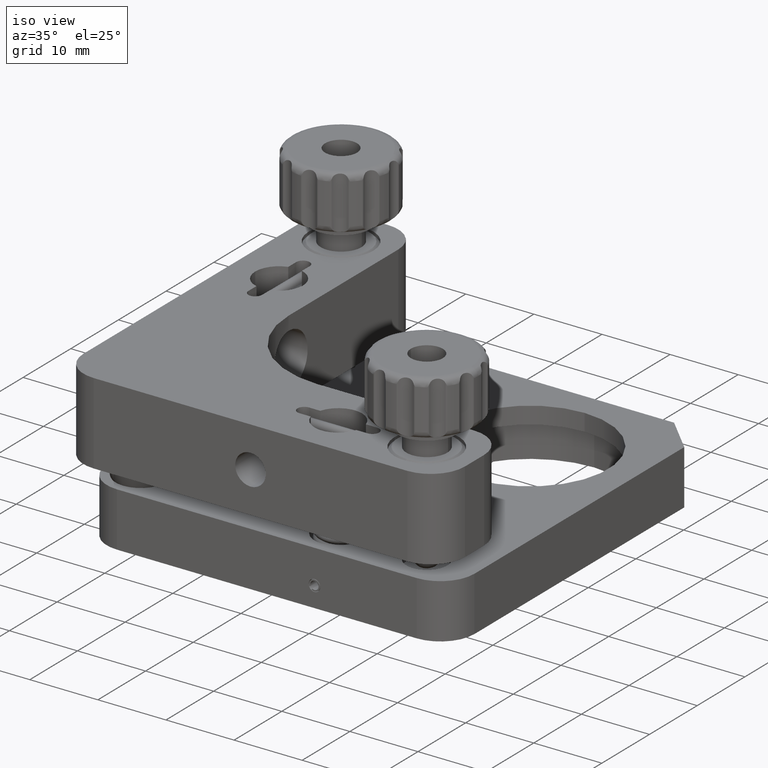
[diagram: clean part render]
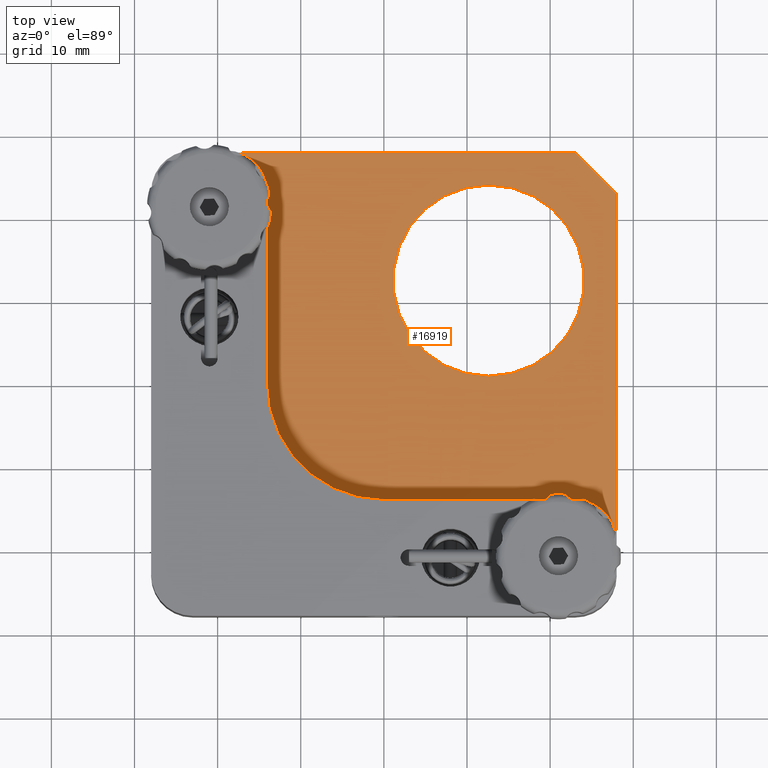
[diagram: tour spotlight — one face highlighted and labeled with its STEP entity id]
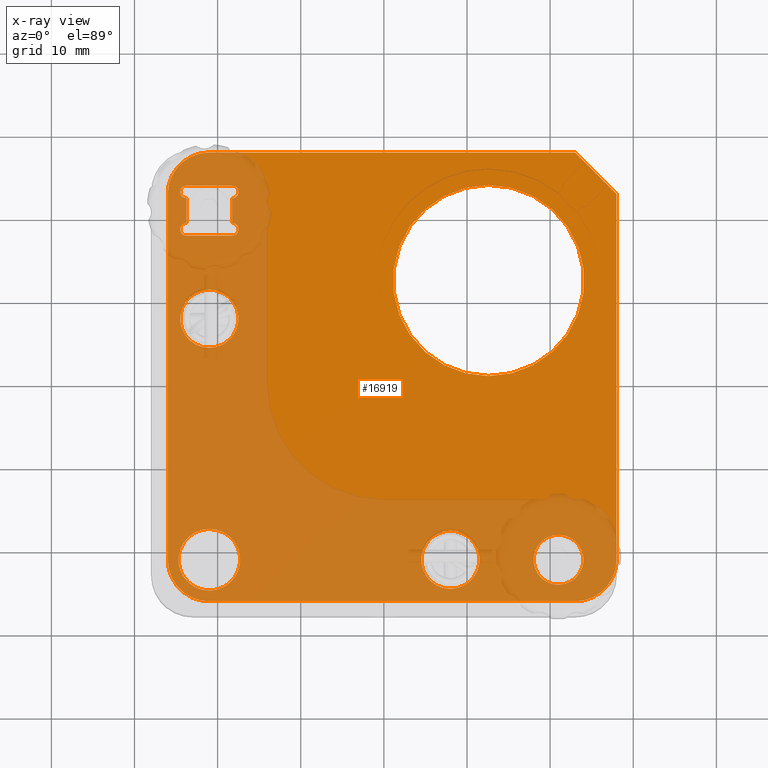
[diagram: x-ray of the same camera — body ghosted, this tour face saturated]
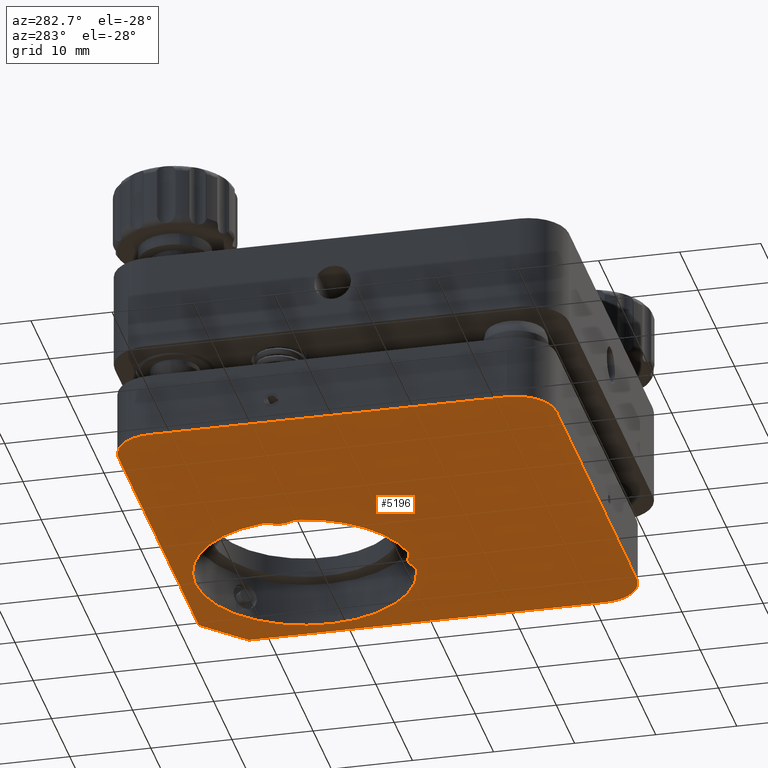
[diagram: tour spotlight — one face highlighted and labeled with its STEP entity id]
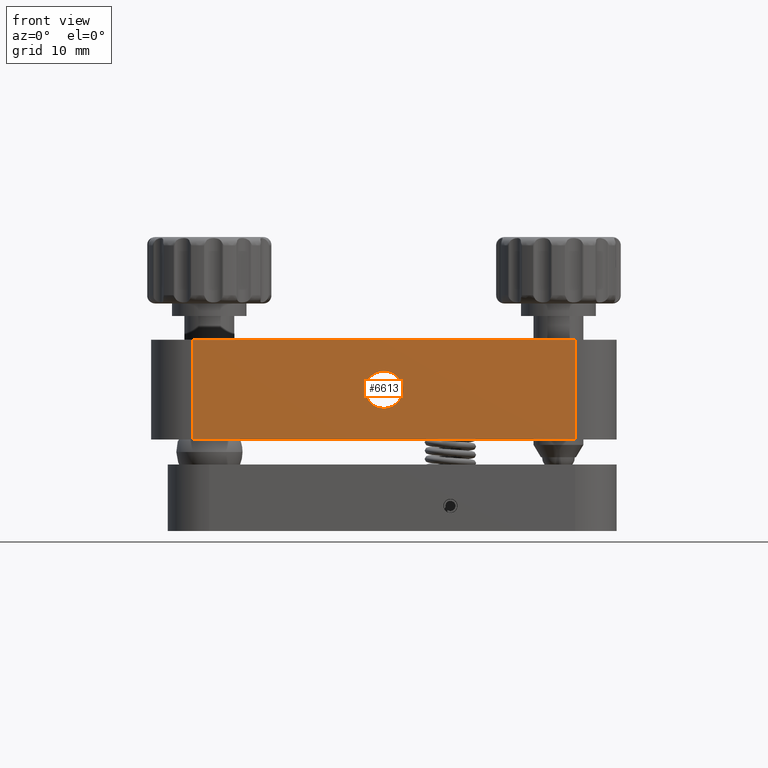
[diagram: tour spotlight — one face highlighted and labeled with its STEP entity id]
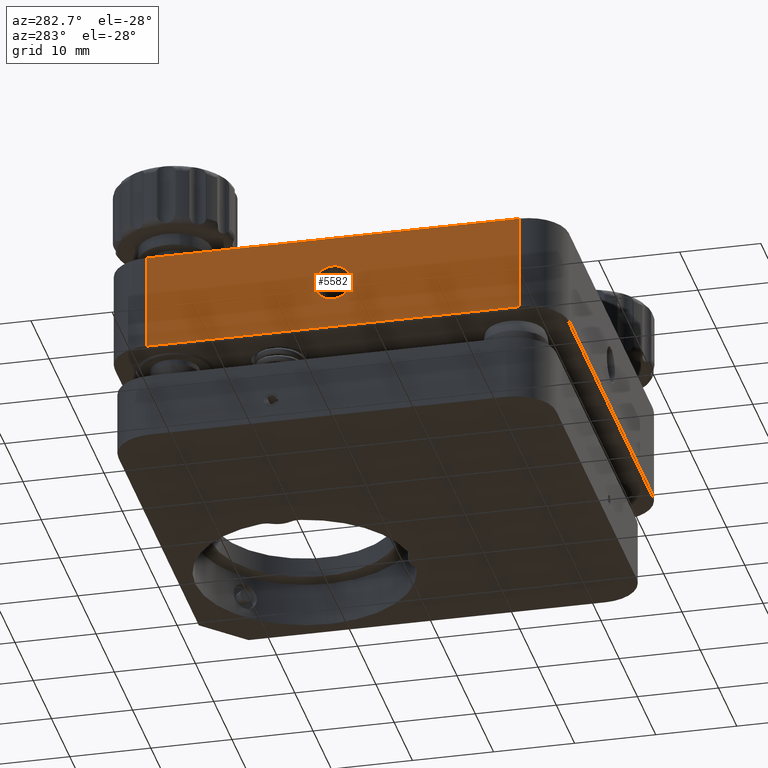
[diagram: tour spotlight — one face highlighted and labeled with its STEP entity id]
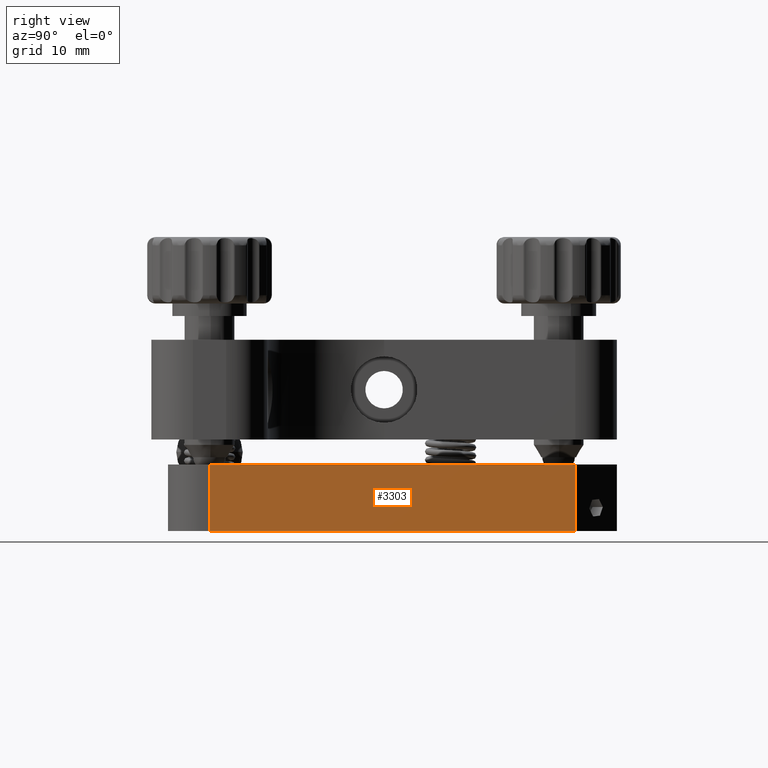
[diagram: tour spotlight — one face highlighted and labeled with its STEP entity id]
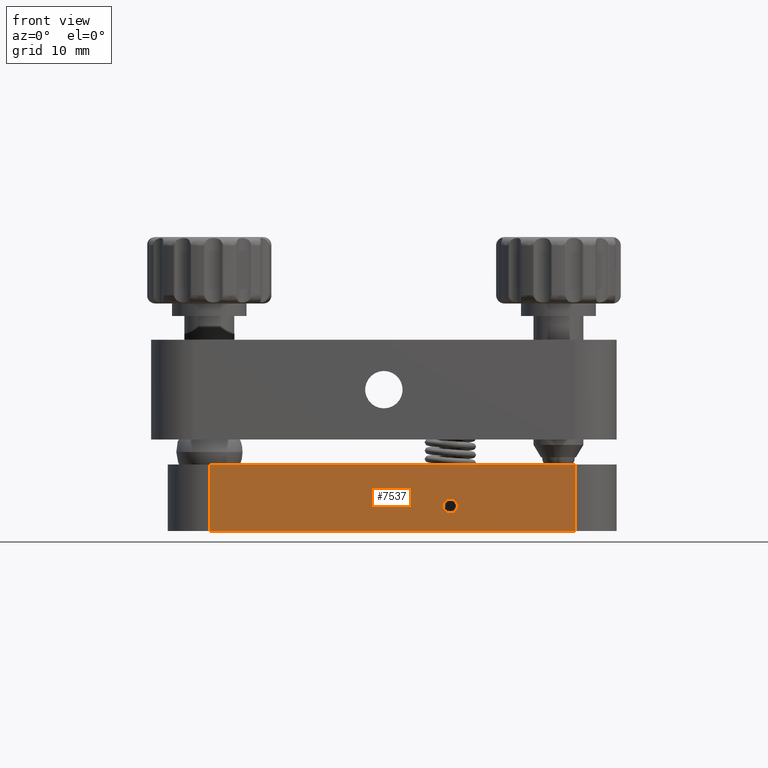
[diagram: tour spotlight — one face highlighted and labeled with its STEP entity id]
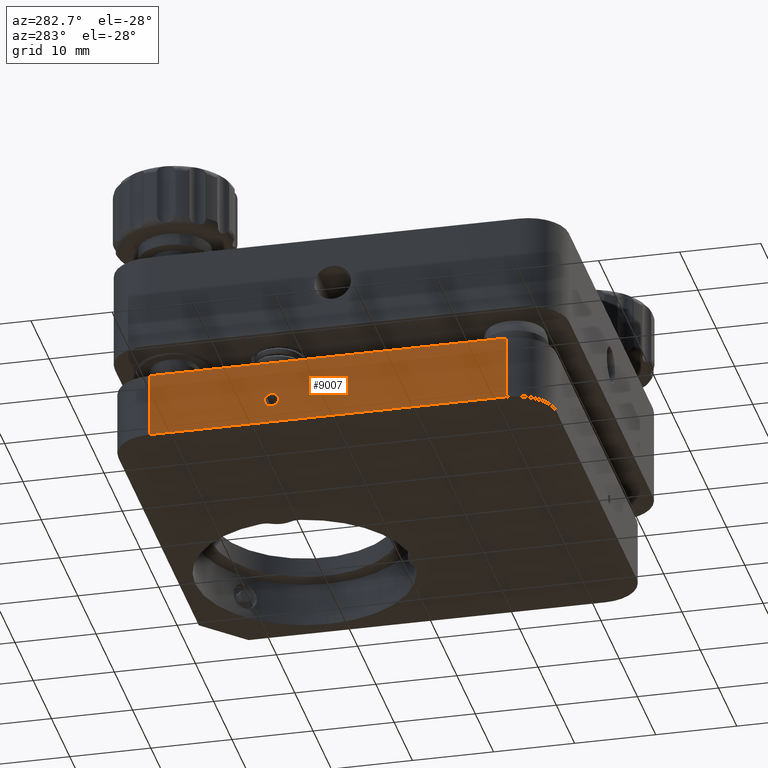
[diagram: tour spotlight — one face highlighted and labeled with its STEP entity id]
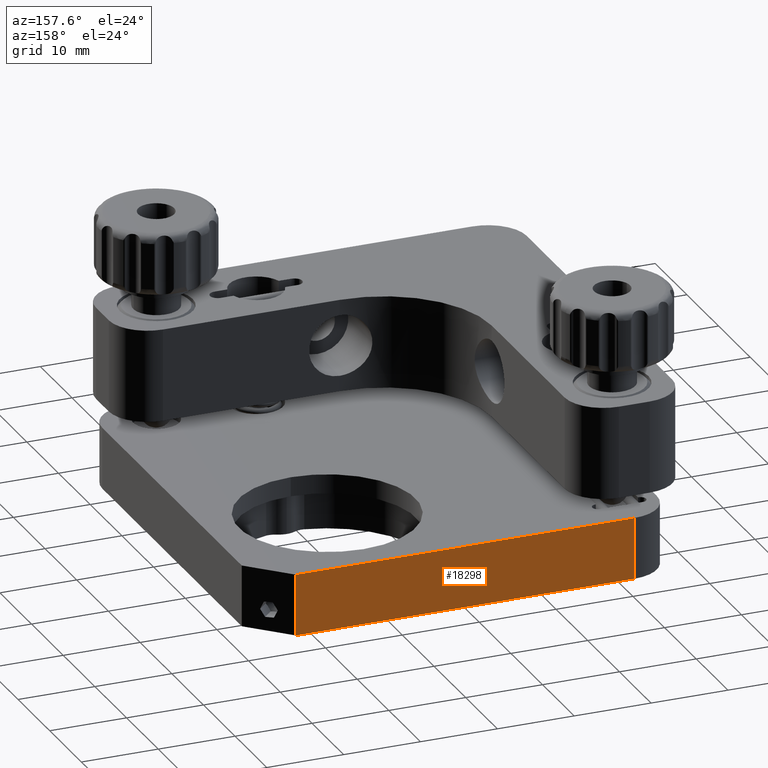
[diagram: tour spotlight — one face highlighted and labeled with its STEP entity id]
A machine part: a face-by-face anatomy tour. The part has 425 B-rep faces; the first image is the clean iso view, then the 8 largest visible faces are spotlighted one at a time (largest first), each with its STEP entity span.

Face 1 — top view, entity #16919. An x-ray twin of the same camera follows (body ghosted, this face saturated) — the face is partly hidden behind the body. In plain terms, the highlighted planar face has unit normal (0, 0, 1).
Definition (entity closure, byte-faithful):
#74 = CARTESIAN_POINT ( 'NONE',  ( -21.00000000000000000, -24.70809924354783100, -9.000000000000000000 ) ) ;
#163 = DIRECTION ( 'NONE',  ( 0.0000000000000000000, -1.000000000000000000, 0.0000000000000000000 ) ) ;
#248 = CARTESIAN_POINT ( 'NONE',  ( 21.00000000000000400, -21.00000000000000000, -9.000000000000000000 ) ) ;
#299 = VECTOR ( 'NONE', #8008, 1000.000000000000000 ) ;
#350 = DIRECTION ( 'NONE',  ( 0.0000000000000000000, 0.0000000000000000000, 1.000000000000000000 ) ) ;
#392 = DIRECTION ( 'NONE',  ( 0.0000000000000000000, -1.000000000000000000, 0.0000000000000000000 ) ) ;
#423 = DIRECTION ( 'NONE',  ( 0.0000000000000000000, -1.000000000000000000, 0.0000000000000000000 ) ) ;
#432 = CIRCLE ( 'NONE', #8452, 3.708099243547830600 ) ;
#457 = EDGE_CURVE ( 'NONE', #3805, #16852, #16433, .T. ) ;
#483 = CARTESIAN_POINT ( 'NONE',  ( -18.25000000000000400, 18.74999999999958800, -9.000000000000000000 ) ) ;
#526 = ORIENTED_EDGE ( 'NONE', *, *, #1746, .F. ) ;
#605 = DIRECTION ( 'NONE',  ( 0.0000000000000000000, -1.000000000000000000, 0.0000000000000000000 ) ) ;
#623 = CIRCLE ( 'NONE', #13646, 4.999999999999997300 ) ;
#737 = FACE_BOUND ( 'NONE', #15922, .T. ) ;
#811 = EDGE_LOOP ( 'NONE', ( #16861, #20470, #7621, #10346, #17543, #3913, #10892, #13469 ) ) ;
#848 = CARTESIAN_POINT ( 'NONE',  ( -21.00000000000000000, -21.00000000000000000, -9.000000000000000000 ) ) ;
#976 = EDGE_LOOP ( 'NONE', ( #6604, #15470 ) ) ;
#981 = CARTESIAN_POINT ( 'NONE',  ( -18.25000000000000400, 17.99999999999958400, -9.000000000000000000 ) ) ;
#1127 = CIRCLE ( 'NONE', #4318, 0.7500000000000006700 ) ;
#1168 = CIRCLE ( 'NONE', #7452, 3.500000000000013300 ) ;
#1184 = CARTESIAN_POINT ( 'NONE',  ( -23.75000000000000000, 19.49999999999958800, -9.000000000000000000 ) ) ;
#1215 = CARTESIAN_POINT ( 'NONE',  ( -23.75000000000000000, 17.99999999999958400, -9.000000000000000000 ) ) ;
#1223 = CARTESIAN_POINT ( 'NONE',  ( -23.75000000000000000, 22.49999999999958400, -9.000000000000000000 ) ) ;
#1367 = CARTESIAN_POINT ( 'NONE',  ( 23.00000000000000700, -20.99999999999999600, -9.000000000000000000 ) ) ;
#1375 = VERTEX_POINT ( 'NONE', #1215 ) ;
#1693 = ORIENTED_EDGE ( 'NONE', *, *, #11764, .F. ) ;
#1733 = DIRECTION ( 'NONE',  ( 0.0000000000000000000, -1.000000000000000000, 0.0000000000000000000 ) ) ;
#1736 = VERTEX_POINT ( 'NONE', #12348 ) ;
#1746 = EDGE_CURVE ( 'NONE', #16941, #3033, #7966, .T. ) ;
#1800 = LINE ( 'NONE', #981, #17207 ) ;
#1911 = DIRECTION ( 'NONE',  ( 0.0000000000000000000, -1.000000000000000000, 0.0000000000000000000 ) ) ;
#2038 = CARTESIAN_POINT ( 'NONE',  ( -20.99999999999998900, -26.00000000000000000, -9.000000000000000000 ) ) ;
#2094 = ORIENTED_EDGE ( 'NONE', *, *, #16570, .F. ) ;
#2289 = EDGE_CURVE ( 'NONE', #18721, #14707, #4686, .T. ) ;
#2359 = DIRECTION ( 'NONE',  ( 0.0000000000000000000, -1.000000000000000000, 0.0000000000000000000 ) ) ;
#2384 = CARTESIAN_POINT ( 'NONE',  ( 21.00000000000000400, -21.00000000000000000, -9.000000000000000000 ) ) ;
#2457 = DIRECTION ( 'NONE',  ( 0.0000000000000000000, 0.0000000000000000000, 1.000000000000000000 ) ) ;
#2463 = AXIS2_PLACEMENT_3D ( 'NONE', #848, #2457, #15039 ) ;
#2561 = VERTEX_POINT ( 'NONE', #16976 ) ;
#2651 = VERTEX_POINT ( 'NONE', #7729 ) ;
#2716 = ORIENTED_EDGE ( 'NONE', *, *, #2964, .F. ) ;
#2964 = EDGE_CURVE ( 'NONE', #15251, #2651, #12115, .T. ) ;
#3018 = AXIS2_PLACEMENT_3D ( 'NONE', #248, #6453, #1733 ) ;
#3033 = VERTEX_POINT ( 'NONE', #6742 ) ;
#3137 = CARTESIAN_POINT ( 'NONE',  ( 8.000000000000000000, -21.00000000000000000, -8.999999999999998200 ) ) ;
#3235 = EDGE_CURVE ( 'NONE', #2651, #15251, #1168, .T. ) ;
#3250 = CARTESIAN_POINT ( 'NONE',  ( -18.25000000000000400, 22.49999999999958400, -9.000000000000000000 ) ) ;
#3332 = CARTESIAN_POINT ( 'NONE',  ( 23.00000000000000700, -26.00000000000000000, -9.000000000000000000 ) ) ;
#3805 = VERTEX_POINT ( 'NONE', #16295 ) ;
#3901 = DIRECTION ( 'NONE',  ( -1.156482317317873100E-015, 1.000000000000000000, 0.0000000000000000000 ) ) ;
#3913 = ORIENTED_EDGE ( 'NONE', *, *, #17527, .T. ) ;
#3985 = DIRECTION ( 'NONE',  ( 0.0000000000000000000, -1.000000000000000000, 0.0000000000000000000 ) ) ;
#4025 = DIRECTION ( 'NONE',  ( 0.0000000000000000000, -1.000000000000000000, 0.0000000000000000000 ) ) ;
#4100 = EDGE_CURVE ( 'NONE', #1736, #9248, #12338, .T. ) ;
#4180 = VERTEX_POINT ( 'NONE', #13996 ) ;
#4318 = AXIS2_PLACEMENT_3D ( 'NONE', #14438, #9692, #163 ) ;
#4494 = VECTOR ( 'NONE', #10601, 1000.000000000000000 ) ;
#4551 = DIRECTION ( 'NONE',  ( 0.0000000000000000000, -1.000000000000000000, 0.0000000000000000000 ) ) ;
#4648 = DIRECTION ( 'NONE',  ( -1.000000000000000000, 0.0000000000000000000, 0.0000000000000000000 ) ) ;
#4657 = VECTOR ( 'NONE', #3901, 1000.000000000000000 ) ;
#4686 = LINE ( 'NONE', #19827, #4657 ) ;
#4863 = CARTESIAN_POINT ( 'NONE',  ( 12.60000000000000000, 12.60000000000000000, -9.000000000000000000 ) ) ;
#4896 = ORIENTED_EDGE ( 'NONE', *, *, #19538, .F. ) ;
#4976 = CARTESIAN_POINT ( 'NONE',  ( 12.60000000000000000, 12.60000000000000000, -9.000000000000000000 ) ) ;
#5361 = CIRCLE ( 'NONE', #3018, 2.999999999999999100 ) ;
#5443 = DIRECTION ( 'NONE',  ( 0.0000000000000000000, 0.0000000000000000000, 1.000000000000000000 ) ) ;
#5481 = EDGE_CURVE ( 'NONE', #14707, #16941, #1127, .T. ) ;
#5500 = CARTESIAN_POINT ( 'NONE',  ( -18.25000000000000400, 17.99999999999958400, -9.000000000000000000 ) ) ;
#5513 = CARTESIAN_POINT ( 'NONE',  ( -21.00000000000000000, 28.00000000000000000, -9.000000000000000000 ) ) ;
#5906 = CIRCLE ( 'NONE', #2463, 3.708099243547830600 ) ;
#5988 = EDGE_LOOP ( 'NONE', ( #19697, #11928 ) ) ;
#6212 = FACE_BOUND ( 'NONE', #14244, .T. ) ;
#6336 = ORIENTED_EDGE ( 'NONE', *, *, #14990, .F. ) ;
#6369 = VECTOR ( 'NONE', #19828, 1000.000000000000000 ) ;
#6453 = DIRECTION ( 'NONE',  ( 0.0000000000000000000, 0.0000000000000000000, 1.000000000000000000 ) ) ;
#6604 = ORIENTED_EDGE ( 'NONE', *, *, #8415, .F. ) ;
#6717 = AXIS2_PLACEMENT_3D ( 'NONE', #11597, #350, #423 ) ;
#6742 = CARTESIAN_POINT ( 'NONE',  ( -23.75000000000000000, 23.99999999999958400, -9.000000000000000000 ) ) ;
#6920 = VERTEX_POINT ( 'NONE', #10407 ) ;
#6964 = AXIS2_PLACEMENT_3D ( 'NONE', #17004, #20351, #4551 ) ;
#7005 = DIRECTION ( 'NONE',  ( 0.0000000000000000000, 0.0000000000000000000, 1.000000000000000000 ) ) ;
#7015 = ORIENTED_EDGE ( 'NONE', *, *, #3235, .F. ) ;
#7164 = CARTESIAN_POINT ( 'NONE',  ( -21.00000000000000000, 4.499999999999986700, -8.999999999999998200 ) ) ;
#7208 = FACE_BOUND ( 'NONE', #8864, .T. ) ;
#7211 = EDGE_CURVE ( 'NONE', #7841, #6920, #5906, .T. ) ;
#7244 = CIRCLE ( 'NONE', #13795, 5.000000000000004400 ) ;
#7250 = LINE ( 'NONE', #14795, #18952 ) ;
#7327 = EDGE_CURVE ( 'NONE', #19192, #20266, #11120, .T. ) ;
#7452 = AXIS2_PLACEMENT_3D ( 'NONE', #3137, #12503, #7868 ) ;
#7621 = ORIENTED_EDGE ( 'NONE', *, *, #13992, .T. ) ;
#7678 = AXIS2_PLACEMENT_3D ( 'NONE', #4863, #8279, #16192 ) ;
#7729 = CARTESIAN_POINT ( 'NONE',  ( 8.000000000000000000, -17.49999999999998900, -8.999999999999998200 ) ) ;
#7774 = DIRECTION ( 'NONE',  ( 0.0000000000000000000, -1.000000000000000000, 0.0000000000000000000 ) ) ;
#7841 = VERTEX_POINT ( 'NONE', #74 ) ;
#7868 = DIRECTION ( 'NONE',  ( 0.0000000000000000000, -1.000000000000000000, 0.0000000000000000000 ) ) ;
#7870 = AXIS2_PLACEMENT_3D ( 'NONE', #1367, #18822, #7774 ) ;
#7939 = CARTESIAN_POINT ( 'NONE',  ( -26.00000000000000700, 23.00000000000000000, -9.000000000000000000 ) ) ;
#7966 = LINE ( 'NONE', #10893, #10666 ) ;
#8008 = DIRECTION ( 'NONE',  ( 3.942553354492744000E-016, -1.000000000000000000, 0.0000000000000000000 ) ) ;
#8279 = DIRECTION ( 'NONE',  ( 0.0000000000000000000, 0.0000000000000000000, 1.000000000000000000 ) ) ;
#8415 = EDGE_CURVE ( 'NONE', #12624, #19718, #12807, .T. ) ;
#8449 = VERTEX_POINT ( 'NONE', #3332 ) ;
#8452 = AXIS2_PLACEMENT_3D ( 'NONE', #8755, #16889, #13619 ) ;
#8481 = EDGE_CURVE ( 'NONE', #20266, #19192, #5361, .T. ) ;
#8508 = CARTESIAN_POINT ( 'NONE',  ( -23.75000000000000000, 23.24999999999958400, -9.000000000000000000 ) ) ;
#8558 = DIRECTION ( 'NONE',  ( 0.0000000000000000000, 0.0000000000000000000, 1.000000000000000000 ) ) ;
#8685 = CARTESIAN_POINT ( 'NONE',  ( -21.00000000000000000, 8.000000000000000000, -8.999999999999998200 ) ) ;
#8693 = CARTESIAN_POINT ( 'NONE',  ( -20.99999999999998900, -20.99999999999999600, -9.000000000000000000 ) ) ;
#8755 = CARTESIAN_POINT ( 'NONE',  ( -21.00000000000000000, -21.00000000000000000, -9.000000000000000000 ) ) ;
#8864 = EDGE_LOOP ( 'NONE', ( #19017, #9749 ) ) ;
#9090 = AXIS2_PLACEMENT_3D ( 'NONE', #483, #8558, #11654 ) ;
#9248 = VERTEX_POINT ( 'NONE', #15800 ) ;
#9301 = CARTESIAN_POINT ( 'NONE',  ( -21.00000000000000000, 23.00000000000000000, -9.000000000000000000 ) ) ;
#9428 = CARTESIAN_POINT ( 'NONE',  ( 28.00000000000000000, 23.00000000000000000, -9.000000000000000000 ) ) ;
#9462 = VECTOR ( 'NONE', #12326, 1000.000000000000100 ) ;
#9482 = CARTESIAN_POINT ( 'NONE',  ( -26.00000000000000400, 23.00000000000000000, -9.000000000000000000 ) ) ;
#9692 = DIRECTION ( 'NONE',  ( 0.0000000000000000000, 0.0000000000000000000, 1.000000000000000000 ) ) ;
#9697 = FACE_BOUND ( 'NONE', #976, .T. ) ;
#9721 = CIRCLE ( 'NONE', #16082, 0.7500000000000006700 ) ;
#9742 = VERTEX_POINT ( 'NONE', #5500 ) ;
#9749 = ORIENTED_EDGE ( 'NONE', *, *, #8481, .F. ) ;
#10082 = CARTESIAN_POINT ( 'NONE',  ( 12.60000000000000100, 24.09999999999999800, -9.000000000000000000 ) ) ;
#10269 = DIRECTION ( 'NONE',  ( 0.0000000000000000000, 0.0000000000000000000, 1.000000000000000000 ) ) ;
#10312 = ORIENTED_EDGE ( 'NONE', *, *, #11394, .F. ) ;
#10346 = ORIENTED_EDGE ( 'NONE', *, *, #14140, .T. ) ;
#10391 = EDGE_CURVE ( 'NONE', #6920, #7841, #432, .T. ) ;
#10407 = CARTESIAN_POINT ( 'NONE',  ( -21.00000000000000000, -17.29190075645217200, -9.000000000000000000 ) ) ;
#10601 = DIRECTION ( 'NONE',  ( -7.885106708985487800E-017, 1.000000000000000000, 0.0000000000000000000 ) ) ;
#10666 = VECTOR ( 'NONE', #4648, 1000.000000000000000 ) ;
#10892 = ORIENTED_EDGE ( 'NONE', *, *, #12371, .T. ) ;
#10893 = CARTESIAN_POINT ( 'NONE',  ( -18.25000000000000400, 23.99999999999958400, -9.000000000000000000 ) ) ;
#10968 = DIRECTION ( 'NONE',  ( 0.0000000000000000000, -1.000000000000000000, 0.0000000000000000000 ) ) ;
#11019 = PLANE ( 'NONE',  #7870 ) ;
#11120 = CIRCLE ( 'NONE', #17393, 2.999999999999999100 ) ;
#11178 = FACE_BOUND ( 'NONE', #5988, .T. ) ;
#11282 = CARTESIAN_POINT ( 'NONE',  ( -18.25000000000000400, 23.99999999999958400, -9.000000000000000000 ) ) ;
#11286 = CARTESIAN_POINT ( 'NONE',  ( 21.00000000000000400, -24.00000000000000000, -9.000000000000000000 ) ) ;
#11394 = EDGE_CURVE ( 'NONE', #17719, #2561, #18330, .T. ) ;
#11418 = CIRCLE ( 'NONE', #17953, 3.500000000000013300 ) ;
#11444 = VERTEX_POINT ( 'NONE', #1223 ) ;
#11500 = VERTEX_POINT ( 'NONE', #9482 ) ;
#11597 = CARTESIAN_POINT ( 'NONE',  ( -23.75000000000000000, 18.74999999999958800, -9.000000000000000000 ) ) ;
#11643 = ORIENTED_EDGE ( 'NONE', *, *, #16117, .F. ) ;
#11654 = DIRECTION ( 'NONE',  ( 0.0000000000000000000, -1.000000000000000000, 0.0000000000000000000 ) ) ;
#11764 = EDGE_CURVE ( 'NONE', #9742, #18721, #13075, .T. ) ;
#11928 = ORIENTED_EDGE ( 'NONE', *, *, #10391, .F. ) ;
#12005 = EDGE_CURVE ( 'NONE', #4180, #17179, #17832, .T. ) ;
#12115 = CIRCLE ( 'NONE', #19983, 3.500000000000013300 ) ;
#12223 = DIRECTION ( 'NONE',  ( 1.000000000000000000, 0.0000000000000000000, 0.0000000000000000000 ) ) ;
#12326 = DIRECTION ( 'NONE',  ( -0.7071067811865474600, 0.7071067811865474600, 0.0000000000000000000 ) ) ;
#12338 = LINE ( 'NONE', #5513, #6369 ) ;
#12348 = CARTESIAN_POINT ( 'NONE',  ( 23.00000000000000000, 28.00000000000000000, -9.000000000000000000 ) ) ;
#12371 = EDGE_CURVE ( 'NONE', #8449, #3805, #623, .T. ) ;
#12419 = FACE_BOUND ( 'NONE', #17665, .T. ) ;
#12503 = DIRECTION ( 'NONE',  ( 0.0000000000000000000, 0.0000000000000000000, 1.000000000000000000 ) ) ;
#12624 = VERTEX_POINT ( 'NONE', #16005 ) ;
#12790 = CARTESIAN_POINT ( 'NONE',  ( 8.000000000000000000, -21.00000000000000000, -8.999999999999998200 ) ) ;
#12807 = CIRCLE ( 'NONE', #7678, 11.49999999999999800 ) ;
#12912 = DIRECTION ( 'NONE',  ( 0.0000000000000000000, 0.0000000000000000000, 1.000000000000000000 ) ) ;
#13075 = CIRCLE ( 'NONE', #9090, 0.7500000000000006700 ) ;
#13358 = AXIS2_PLACEMENT_3D ( 'NONE', #8693, #10269, #2359 ) ;
#13469 = ORIENTED_EDGE ( 'NONE', *, *, #457, .T. ) ;
#13510 = DIRECTION ( 'NONE',  ( 0.0000000000000000000, 0.0000000000000000000, 1.000000000000000000 ) ) ;
#13619 = DIRECTION ( 'NONE',  ( 0.0000000000000000000, -1.000000000000000000, 0.0000000000000000000 ) ) ;
#13646 = AXIS2_PLACEMENT_3D ( 'NONE', #17578, #12912, #14375 ) ;
#13698 = LINE ( 'NONE', #13811, #9462 ) ;
#13795 = AXIS2_PLACEMENT_3D ( 'NONE', #9301, #18709, #10968 ) ;
#13811 = CARTESIAN_POINT ( 'NONE',  ( 23.00000000000000000, 28.00000000000000000, -9.000000000000000000 ) ) ;
#13825 = CARTESIAN_POINT ( 'NONE',  ( -18.25000000000000000, 19.49999999999958800, -9.000000000000000000 ) ) ;
#13992 = EDGE_CURVE ( 'NONE', #9248, #11500, #7244, .T. ) ;
#13996 = CARTESIAN_POINT ( 'NONE',  ( -25.99999999999998900, -20.99999999999999600, -9.000000000000000000 ) ) ;
#14140 = EDGE_CURVE ( 'NONE', #11500, #4180, #15235, .T. ) ;
#14244 = EDGE_LOOP ( 'NONE', ( #1693, #6336, #4896, #18448, #11643, #526, #15118, #17379 ) ) ;
#14375 = DIRECTION ( 'NONE',  ( 0.0000000000000000000, -1.000000000000000000, 0.0000000000000000000 ) ) ;
#14438 = CARTESIAN_POINT ( 'NONE',  ( -18.25000000000000400, 23.24999999999958400, -9.000000000000000000 ) ) ;
#14681 = FACE_OUTER_BOUND ( 'NONE', #811, .T. ) ;
#14707 = VERTEX_POINT ( 'NONE', #3250 ) ;
#14795 = CARTESIAN_POINT ( 'NONE',  ( -23.75000000000000000, 19.49999999999958800, -9.000000000000000000 ) ) ;
#14914 = CARTESIAN_POINT ( 'NONE',  ( 21.00000000000000400, -18.00000000000000000, -9.000000000000000000 ) ) ;
#14966 = VERTEX_POINT ( 'NONE', #1184 ) ;
#14990 = EDGE_CURVE ( 'NONE', #1375, #9742, #1800, .T. ) ;
#15039 = DIRECTION ( 'NONE',  ( 0.0000000000000000000, -1.000000000000000000, 0.0000000000000000000 ) ) ;
#15118 = ORIENTED_EDGE ( 'NONE', *, *, #5481, .F. ) ;
#15195 = AXIS2_PLACEMENT_3D ( 'NONE', #4976, #16087, #1911 ) ;
#15235 = LINE ( 'NONE', #7939, #299 ) ;
#15251 = VERTEX_POINT ( 'NONE', #15528 ) ;
#15412 = LINE ( 'NONE', #2038, #17923 ) ;
#15470 = ORIENTED_EDGE ( 'NONE', *, *, #18396, .F. ) ;
#15503 = EDGE_CURVE ( 'NONE', #11444, #14966, #7250, .T. ) ;
#15528 = CARTESIAN_POINT ( 'NONE',  ( 8.000000000000000000, -24.50000000000001400, -8.999999999999998200 ) ) ;
#15753 = EDGE_CURVE ( 'NONE', #16852, #1736, #13698, .T. ) ;
#15800 = CARTESIAN_POINT ( 'NONE',  ( -21.00000000000000000, 28.00000000000000000, -9.000000000000000000 ) ) ;
#15876 = CIRCLE ( 'NONE', #15195, 11.49999999999999800 ) ;
#15922 = EDGE_LOOP ( 'NONE', ( #10312, #2094 ) ) ;
#16004 = DIRECTION ( 'NONE',  ( 0.0000000000000000000, 0.0000000000000000000, 1.000000000000000000 ) ) ;
#16005 = CARTESIAN_POINT ( 'NONE',  ( 12.60000000000000000, 1.100000000000002100, -9.000000000000000000 ) ) ;
#16082 = AXIS2_PLACEMENT_3D ( 'NONE', #8508, #5443, #19621 ) ;
#16087 = DIRECTION ( 'NONE',  ( 0.0000000000000000000, 0.0000000000000000000, 1.000000000000000000 ) ) ;
#16117 = EDGE_CURVE ( 'NONE', #3033, #11444, #9721, .T. ) ;
#16192 = DIRECTION ( 'NONE',  ( 0.0000000000000000000, -1.000000000000000000, 0.0000000000000000000 ) ) ;
#16295 = CARTESIAN_POINT ( 'NONE',  ( 28.00000000000000400, -20.99999999999999600, -9.000000000000000000 ) ) ;
#16358 = DIRECTION ( 'NONE',  ( 1.000000000000000000, 0.0000000000000000000, 0.0000000000000000000 ) ) ;
#16433 = LINE ( 'NONE', #19112, #4494 ) ;
#16570 = EDGE_CURVE ( 'NONE', #2561, #17719, #11418, .T. ) ;
#16852 = VERTEX_POINT ( 'NONE', #9428 ) ;
#16861 = ORIENTED_EDGE ( 'NONE', *, *, #15753, .T. ) ;
#16889 = DIRECTION ( 'NONE',  ( 0.0000000000000000000, 0.0000000000000000000, 1.000000000000000000 ) ) ;
#16919 = ADVANCED_FACE ( 'NONE', ( #6212, #12419, #737, #11178, #7208, #9697, #14681 ), #11019, .T. ) ;
#16941 = VERTEX_POINT ( 'NONE', #11282 ) ;
#16976 = CARTESIAN_POINT ( 'NONE',  ( -21.00000000000000000, 11.50000000000001400, -8.999999999999998200 ) ) ;
#17004 = CARTESIAN_POINT ( 'NONE',  ( -21.00000000000000000, 8.000000000000000000, -8.999999999999998200 ) ) ;
#17179 = VERTEX_POINT ( 'NONE', #18389 ) ;
#17207 = VECTOR ( 'NONE', #12223, 1000.000000000000000 ) ;
#17379 = ORIENTED_EDGE ( 'NONE', *, *, #2289, .F. ) ;
#17393 = AXIS2_PLACEMENT_3D ( 'NONE', #2384, #13510, #3985 ) ;
#17527 = EDGE_CURVE ( 'NONE', #17179, #8449, #15412, .T. ) ;
#17543 = ORIENTED_EDGE ( 'NONE', *, *, #12005, .T. ) ;
#17578 = CARTESIAN_POINT ( 'NONE',  ( 23.00000000000000700, -20.99999999999999600, -9.000000000000000000 ) ) ;
#17665 = EDGE_LOOP ( 'NONE', ( #2716, #7015 ) ) ;
#17719 = VERTEX_POINT ( 'NONE', #7164 ) ;
#17832 = CIRCLE ( 'NONE', #13358, 4.999999999999997300 ) ;
#17923 = VECTOR ( 'NONE', #16358, 1000.000000000000000 ) ;
#17953 = AXIS2_PLACEMENT_3D ( 'NONE', #8685, #7005, #4025 ) ;
#18330 = CIRCLE ( 'NONE', #6964, 3.500000000000013300 ) ;
#18389 = CARTESIAN_POINT ( 'NONE',  ( -20.99999999999998900, -25.99999999999999600, -9.000000000000000000 ) ) ;
#18396 = EDGE_CURVE ( 'NONE', #19718, #12624, #15876, .T. ) ;
#18448 = ORIENTED_EDGE ( 'NONE', *, *, #15503, .F. ) ;
#18709 = DIRECTION ( 'NONE',  ( 0.0000000000000000000, 0.0000000000000000000, 1.000000000000000000 ) ) ;
#18721 = VERTEX_POINT ( 'NONE', #13825 ) ;
#18822 = DIRECTION ( 'NONE',  ( 0.0000000000000000000, 0.0000000000000000000, 1.000000000000000000 ) ) ;
#18952 = VECTOR ( 'NONE', #392, 1000.000000000000000 ) ;
#19017 = ORIENTED_EDGE ( 'NONE', *, *, #7327, .F. ) ;
#19112 = CARTESIAN_POINT ( 'NONE',  ( 28.00000000000000000, 23.00000000000000000, -9.000000000000000000 ) ) ;
#19192 = VERTEX_POINT ( 'NONE', #11286 ) ;
#19538 = EDGE_CURVE ( 'NONE', #14966, #1375, #20355, .T. ) ;
#19621 = DIRECTION ( 'NONE',  ( 0.0000000000000000000, -1.000000000000000000, 0.0000000000000000000 ) ) ;
#19697 = ORIENTED_EDGE ( 'NONE', *, *, #7211, .F. ) ;
#19718 = VERTEX_POINT ( 'NONE', #10082 ) ;
#19827 = CARTESIAN_POINT ( 'NONE',  ( -18.25000000000000000, 19.49999999999958800, -9.000000000000000000 ) ) ;
#19828 = DIRECTION ( 'NONE',  ( -1.000000000000000000, 0.0000000000000000000, 0.0000000000000000000 ) ) ;
#19983 = AXIS2_PLACEMENT_3D ( 'NONE', #12790, #16004, #605 ) ;
#20266 = VERTEX_POINT ( 'NONE', #14914 ) ;
#20351 = DIRECTION ( 'NONE',  ( 0.0000000000000000000, 0.0000000000000000000, 1.000000000000000000 ) ) ;
#20355 = CIRCLE ( 'NONE', #6717, 0.7500000000000006700 ) ;
#20470 = ORIENTED_EDGE ( 'NONE', *, *, #4100, .T. ) ;

Face 2 — auxiliary view, entity #5196. In plain terms, the highlighted planar face has unit normal (0, 0, 1).
Definition (entity closure, byte-faithful):
#637 = VERTEX_POINT ( 'NONE', #14968 ) ;
#701 = ORIENTED_EDGE ( 'NONE', *, *, #11324, .F. ) ;
#890 = ORIENTED_EDGE ( 'NONE', *, *, #11069, .F. ) ;
#974 = EDGE_CURVE ( 'NONE', #12362, #16122, #1756, .T. ) ;
#1082 = DIRECTION ( 'NONE',  ( 0.0000000000000000000, -1.000000000000000000, 0.0000000000000000000 ) ) ;
#1191 = CARTESIAN_POINT ( 'NONE',  ( 28.00000000000000000, 23.00000000000000000, -17.00000000000000000 ) ) ;
#1301 = ORIENTED_EDGE ( 'NONE', *, *, #4975, .T. ) ;
#1756 = LINE ( 'NONE', #11342, #10425 ) ;
#1790 = DIRECTION ( 'NONE',  ( -0.7071067811865474600, 0.7071067811865474600, 0.0000000000000000000 ) ) ;
#1834 = ORIENTED_EDGE ( 'NONE', *, *, #20663, .F. ) ;
#1947 = VERTEX_POINT ( 'NONE', #10344 ) ;
#2077 = DIRECTION ( 'NONE',  ( -1.000000000000000000, 0.0000000000000000000, 0.0000000000000000000 ) ) ;
#2296 = ORIENTED_EDGE ( 'NONE', *, *, #13209, .T. ) ;
#2515 = CARTESIAN_POINT ( 'NONE',  ( -20.99999999999998900, -25.99999999999999600, -17.00000000000000000 ) ) ;
#2526 = EDGE_CURVE ( 'NONE', #14660, #12362, #18847, .T. ) ;
#2586 = VERTEX_POINT ( 'NONE', #14268 ) ;
#2596 = AXIS2_PLACEMENT_3D ( 'NONE', #18871, #9323, #20486 ) ;
#2630 = FACE_OUTER_BOUND ( 'NONE', #5091, .T. ) ;
#2865 = DIRECTION ( 'NONE',  ( 0.0000000000000000000, -1.000000000000000000, 0.0000000000000000000 ) ) ;
#2872 = AXIS2_PLACEMENT_3D ( 'NONE', #20244, #10420, #18435 ) ;
#3009 = DIRECTION ( 'NONE',  ( 0.0000000000000000000, 0.0000000000000000000, 1.000000000000000000 ) ) ;
#3465 = CARTESIAN_POINT ( 'NONE',  ( 23.00000000000000700, -26.00000000000000000, -17.00000000000000000 ) ) ;
#3626 = EDGE_CURVE ( 'NONE', #14957, #8442, #8885, .T. ) ;
#3670 = DIRECTION ( 'NONE',  ( 0.0000000000000000000, 0.0000000000000000000, -1.000000000000000000 ) ) ;
#3774 = VERTEX_POINT ( 'NONE', #9953 ) ;
#3841 = ORIENTED_EDGE ( 'NONE', *, *, #17860, .F. ) ;
#3868 = DIRECTION ( 'NONE',  ( 0.0000000000000000000, -1.000000000000000000, 0.0000000000000000000 ) ) ;
#4058 = CARTESIAN_POINT ( 'NONE',  ( 15.08662585214282400, -0.6690124678310170900, -17.00000000000000000 ) ) ;
#4075 = PLANE ( 'NONE',  #20039 ) ;
#4118 = ORIENTED_EDGE ( 'NONE', *, *, #10638, .F. ) ;
#4164 = LINE ( 'NONE', #5889, #14370 ) ;
#4224 = EDGE_CURVE ( 'NONE', #637, #7274, #12071, .T. ) ;
#4307 = VERTEX_POINT ( 'NONE', #4525 ) ;
#4409 = CIRCLE ( 'NONE', #14586, 13.49999999999999800 ) ;
#4456 = DIRECTION ( 'NONE',  ( -7.885106708985487800E-017, 1.000000000000000000, 0.0000000000000000000 ) ) ;
#4525 = CARTESIAN_POINT ( 'NONE',  ( -21.00000000000000000, 28.00000000000000000, -17.00000000000000000 ) ) ;
#4539 = CIRCLE ( 'NONE', #2872, 4.999999999999997300 ) ;
#4548 = ORIENTED_EDGE ( 'NONE', *, *, #6334, .F. ) ;
#4866 = CARTESIAN_POINT ( 'NONE',  ( -2.673506473629508700, 12.60000000000000000, -17.00000000000000000 ) ) ;
#4952 = CIRCLE ( 'NONE', #5662, 5.000000000000004400 ) ;
#4975 = EDGE_CURVE ( 'NONE', #6538, #16857, #12316, .T. ) ;
#5004 = DIRECTION ( 'NONE',  ( 0.0000000000000000000, 1.000000000000000000, 0.0000000000000000000 ) ) ;
#5091 = EDGE_LOOP ( 'NONE', ( #16510, #6655, #14595, #13342, #701, #4118, #4548, #890 ) ) ;
#5120 = CARTESIAN_POINT ( 'NONE',  ( 12.60000000000000000, 26.10000000000000100, -17.00000000000000000 ) ) ;
#5196 = ADVANCED_FACE ( 'NONE', ( #19539, #2630 ), #4075, .F. ) ;
#5523 = DIRECTION ( 'NONE',  ( 0.0000000000000000000, 0.0000000000000000000, 1.000000000000000000 ) ) ;
#5528 = VERTEX_POINT ( 'NONE', #5120 ) ;
#5662 = AXIS2_PLACEMENT_3D ( 'NONE', #19627, #5523, #11545 ) ;
#5777 = CARTESIAN_POINT ( 'NONE',  ( 12.59999999999999600, -2.673506473629344800, -17.00000000000000000 ) ) ;
#5794 = AXIS2_PLACEMENT_3D ( 'NONE', #17691, #9949, #17760 ) ;
#5828 = DIRECTION ( 'NONE',  ( 3.942553354492744000E-016, -1.000000000000000000, 0.0000000000000000000 ) ) ;
#5889 = CARTESIAN_POINT ( 'NONE',  ( -26.00000000000000700, 23.00000000000000000, -17.00000000000000000 ) ) ;
#5903 = DIRECTION ( 'NONE',  ( 0.0000000000000000000, 0.0000000000000000000, 1.000000000000000000 ) ) ;
#5943 = DIRECTION ( 'NONE',  ( 0.0000000000000000000, 0.0000000000000000000, 1.000000000000000000 ) ) ;
#6053 = DIRECTION ( 'NONE',  ( 0.0000000000000000000, 1.000000000000000000, 0.0000000000000000000 ) ) ;
#6334 = EDGE_CURVE ( 'NONE', #4307, #2586, #4952, .T. ) ;
#6538 = VERTEX_POINT ( 'NONE', #20401 ) ;
#6555 = EDGE_CURVE ( 'NONE', #8505, #8444, #11380, .T. ) ;
#6655 = ORIENTED_EDGE ( 'NONE', *, *, #2526, .F. ) ;
#6986 = CARTESIAN_POINT ( 'NONE',  ( -21.00000000000000000, 28.00000000000000000, -17.00000000000000000 ) ) ;
#7092 = EDGE_CURVE ( 'NONE', #12897, #16857, #4409, .T. ) ;
#7205 = EDGE_CURVE ( 'NONE', #15976, #1947, #8420, .T. ) ;
#7274 = VERTEX_POINT ( 'NONE', #4058 ) ;
#7290 = CARTESIAN_POINT ( 'NONE',  ( -20.99999999999998900, -26.00000000000000000, -17.00000000000000000 ) ) ;
#7703 = CARTESIAN_POINT ( 'NONE',  ( -0.6690124678310656000, 10.11337414785743300, -17.00000000000000000 ) ) ;
#7780 = CIRCLE ( 'NONE', #20202, 13.49999999999999800 ) ;
#8085 = AXIS2_PLACEMENT_3D ( 'NONE', #17256, #3009, #6053 ) ;
#8129 = CARTESIAN_POINT ( 'NONE',  ( 28.00000000000000000, 23.00000000000000000, -17.00000000000000000 ) ) ;
#8328 = AXIS2_PLACEMENT_3D ( 'NONE', #13187, #9994, #3868 ) ;
#8420 = CIRCLE ( 'NONE', #19918, 2.000000000000000000 ) ;
#8442 = VERTEX_POINT ( 'NONE', #3465 ) ;
#8444 = VERTEX_POINT ( 'NONE', #11227 ) ;
#8476 = DIRECTION ( 'NONE',  ( 0.0000000000000000000, 1.000000000000000000, 0.0000000000000000000 ) ) ;
#8505 = VERTEX_POINT ( 'NONE', #16264 ) ;
#8885 = LINE ( 'NONE', #7290, #15353 ) ;
#9323 = DIRECTION ( 'NONE',  ( 0.0000000000000000000, 0.0000000000000000000, 1.000000000000000000 ) ) ;
#9497 = CARTESIAN_POINT ( 'NONE',  ( 28.00000000000000400, -20.99999999999999600, -17.00000000000000000 ) ) ;
#9949 = DIRECTION ( 'NONE',  ( 0.0000000000000000000, 0.0000000000000000000, -1.000000000000000000 ) ) ;
#9953 = CARTESIAN_POINT ( 'NONE',  ( -25.99999999999998900, -20.99999999999999600, -17.00000000000000000 ) ) ;
#9994 = DIRECTION ( 'NONE',  ( 0.0000000000000000000, 0.0000000000000000000, 1.000000000000000000 ) ) ;
#9997 = CARTESIAN_POINT ( 'NONE',  ( 10.11337414785718300, -0.6690124678310187500, -17.00000000000000000 ) ) ;
#10344 = CARTESIAN_POINT ( 'NONE',  ( -0.4677989010393388000, 13.77679824278351900, -17.00000000000000000 ) ) ;
#10363 = CARTESIAN_POINT ( 'NONE',  ( 1.296767157032797200, 14.71823683701033600, -17.00000000000000000 ) ) ;
#10420 = DIRECTION ( 'NONE',  ( 0.0000000000000000000, 0.0000000000000000000, 1.000000000000000000 ) ) ;
#10425 = VECTOR ( 'NONE', #1790, 1000.000000000000100 ) ;
#10595 = DIRECTION ( 'NONE',  ( 0.0000000000000000000, 0.0000000000000000000, 1.000000000000000000 ) ) ;
#10638 = EDGE_CURVE ( 'NONE', #2586, #3774, #4164, .T. ) ;
#10792 = DIRECTION ( 'NONE',  ( 0.0000000000000000000, -1.000000000000000000, 0.0000000000000000000 ) ) ;
#10830 = CARTESIAN_POINT ( 'NONE',  ( 14.71823683701055400, 1.296767157032836700, -17.00000000000000000 ) ) ;
#11069 = EDGE_CURVE ( 'NONE', #16122, #4307, #16841, .T. ) ;
#11227 = CARTESIAN_POINT ( 'NONE',  ( 11.42320175721636000, -0.4677989010392442600, -17.00000000000000000 ) ) ;
#11232 = AXIS2_PLACEMENT_3D ( 'NONE', #4866, #19185, #5004 ) ;
#11324 = EDGE_CURVE ( 'NONE', #3774, #14957, #14843, .T. ) ;
#11342 = CARTESIAN_POINT ( 'NONE',  ( 23.00000000000000000, 28.00000000000000000, -17.00000000000000000 ) ) ;
#11380 = CIRCLE ( 'NONE', #8085, 2.499999999999993800 ) ;
#11545 = DIRECTION ( 'NONE',  ( 0.0000000000000000000, -1.000000000000000000, 0.0000000000000000000 ) ) ;
#11822 = ORIENTED_EDGE ( 'NONE', *, *, #4224, .T. ) ;
#12069 = ORIENTED_EDGE ( 'NONE', *, *, #7205, .T. ) ;
#12071 = CIRCLE ( 'NONE', #19757, 2.000000000000000000 ) ;
#12316 = CIRCLE ( 'NONE', #8328, 2.000000000000000000 ) ;
#12362 = VERTEX_POINT ( 'NONE', #8129 ) ;
#12842 = VECTOR ( 'NONE', #2077, 1000.000000000000000 ) ;
#12897 = VERTEX_POINT ( 'NONE', #9997 ) ;
#12967 = CARTESIAN_POINT ( 'NONE',  ( -0.6690124678310656000, 15.08662585214256800, -17.00000000000000000 ) ) ;
#13187 = CARTESIAN_POINT ( 'NONE',  ( 1.296767157032797200, 10.48176316298966500, -17.00000000000000000 ) ) ;
#13209 = EDGE_CURVE ( 'NONE', #12897, #8444, #19285, .T. ) ;
#13342 = ORIENTED_EDGE ( 'NONE', *, *, #3626, .F. ) ;
#13361 = DIRECTION ( 'NONE',  ( 0.0000000000000000000, -1.000000000000000000, 0.0000000000000000000 ) ) ;
#13489 = EDGE_CURVE ( 'NONE', #15976, #5528, #19042, .T. ) ;
#13744 = AXIS2_PLACEMENT_3D ( 'NONE', #5777, #5903, #20243 ) ;
#13882 = EDGE_CURVE ( 'NONE', #8442, #14660, #4539, .T. ) ;
#14176 = ORIENTED_EDGE ( 'NONE', *, *, #14228, .F. ) ;
#14228 = EDGE_CURVE ( 'NONE', #5528, #7274, #7780, .T. ) ;
#14268 = CARTESIAN_POINT ( 'NONE',  ( -26.00000000000000400, 23.00000000000000000, -17.00000000000000000 ) ) ;
#14285 = CARTESIAN_POINT ( 'NONE',  ( 12.60000000000000000, 12.60000000000000000, -17.00000000000000000 ) ) ;
#14370 = VECTOR ( 'NONE', #5828, 1000.000000000000000 ) ;
#14586 = AXIS2_PLACEMENT_3D ( 'NONE', #14285, #17839, #19434 ) ;
#14595 = ORIENTED_EDGE ( 'NONE', *, *, #13882, .F. ) ;
#14660 = VERTEX_POINT ( 'NONE', #9497 ) ;
#14843 = CIRCLE ( 'NONE', #16031, 4.999999999999997300 ) ;
#14951 = ORIENTED_EDGE ( 'NONE', *, *, #7092, .F. ) ;
#14957 = VERTEX_POINT ( 'NONE', #2515 ) ;
#14968 = CARTESIAN_POINT ( 'NONE',  ( 13.77679824278363800, -0.4677989010392468700, -17.00000000000000000 ) ) ;
#15151 = CIRCLE ( 'NONE', #13744, 2.499999999999993800 ) ;
#15199 = CARTESIAN_POINT ( 'NONE',  ( 23.00000000000000700, -20.99999999999999600, -17.00000000000000000 ) ) ;
#15302 = DIRECTION ( 'NONE',  ( 0.0000000000000000000, 0.0000000000000000000, 1.000000000000000000 ) ) ;
#15353 = VECTOR ( 'NONE', #18417, 1000.000000000000000 ) ;
#15976 = VERTEX_POINT ( 'NONE', #12967 ) ;
#16013 = ORIENTED_EDGE ( 'NONE', *, *, #13489, .F. ) ;
#16031 = AXIS2_PLACEMENT_3D ( 'NONE', #17140, #5943, #10792 ) ;
#16122 = VERTEX_POINT ( 'NONE', #16499 ) ;
#16264 = CARTESIAN_POINT ( 'NONE',  ( 12.59999999999999600, -0.1735064736293509300, -17.00000000000000000 ) ) ;
#16359 = VECTOR ( 'NONE', #4456, 1000.000000000000000 ) ;
#16409 = EDGE_LOOP ( 'NONE', ( #3841, #11822, #14176, #16013, #12069, #1834, #1301, #14951, #2296, #17757 ) ) ;
#16499 = CARTESIAN_POINT ( 'NONE',  ( 23.00000000000000000, 28.00000000000000000, -17.00000000000000000 ) ) ;
#16510 = ORIENTED_EDGE ( 'NONE', *, *, #974, .F. ) ;
#16841 = LINE ( 'NONE', #6986, #12842 ) ;
#16857 = VERTEX_POINT ( 'NONE', #7703 ) ;
#17140 = CARTESIAN_POINT ( 'NONE',  ( -20.99999999999998900, -20.99999999999999600, -17.00000000000000000 ) ) ;
#17256 = CARTESIAN_POINT ( 'NONE',  ( 12.59999999999999600, -2.673506473629344800, -17.00000000000000000 ) ) ;
#17691 = CARTESIAN_POINT ( 'NONE',  ( 12.60000000000000000, 12.60000000000000000, -17.00000000000000000 ) ) ;
#17757 = ORIENTED_EDGE ( 'NONE', *, *, #6555, .F. ) ;
#17760 = DIRECTION ( 'NONE',  ( 0.0000000000000000000, 1.000000000000000000, 0.0000000000000000000 ) ) ;
#17801 = CARTESIAN_POINT ( 'NONE',  ( 12.60000000000000000, 12.60000000000000000, -17.00000000000000000 ) ) ;
#17839 = DIRECTION ( 'NONE',  ( 0.0000000000000000000, 0.0000000000000000000, -1.000000000000000000 ) ) ;
#17860 = EDGE_CURVE ( 'NONE', #637, #8505, #15151, .T. ) ;
#18417 = DIRECTION ( 'NONE',  ( 1.000000000000000000, 0.0000000000000000000, 0.0000000000000000000 ) ) ;
#18435 = DIRECTION ( 'NONE',  ( 0.0000000000000000000, -1.000000000000000000, 0.0000000000000000000 ) ) ;
#18847 = LINE ( 'NONE', #1191, #16359 ) ;
#18871 = CARTESIAN_POINT ( 'NONE',  ( 10.48176316298945200, 1.296767157032837600, -17.00000000000000000 ) ) ;
#19042 = CIRCLE ( 'NONE', #5794, 13.49999999999999800 ) ;
#19185 = DIRECTION ( 'NONE',  ( 0.0000000000000000000, 0.0000000000000000000, 1.000000000000000000 ) ) ;
#19285 = CIRCLE ( 'NONE', #2596, 2.000000000000000000 ) ;
#19434 = DIRECTION ( 'NONE',  ( 0.0000000000000000000, 1.000000000000000000, 0.0000000000000000000 ) ) ;
#19539 = FACE_BOUND ( 'NONE', #16409, .T. ) ;
#19627 = CARTESIAN_POINT ( 'NONE',  ( -21.00000000000000000, 23.00000000000000000, -17.00000000000000000 ) ) ;
#19757 = AXIS2_PLACEMENT_3D ( 'NONE', #10830, #15302, #2865 ) ;
#19913 = DIRECTION ( 'NONE',  ( 0.0000000000000000000, 0.0000000000000000000, 1.000000000000000000 ) ) ;
#19918 = AXIS2_PLACEMENT_3D ( 'NONE', #10363, #19913, #13361 ) ;
#20039 = AXIS2_PLACEMENT_3D ( 'NONE', #15199, #10595, #1082 ) ;
#20202 = AXIS2_PLACEMENT_3D ( 'NONE', #17801, #3670, #8476 ) ;
#20243 = DIRECTION ( 'NONE',  ( 0.0000000000000000000, 1.000000000000000000, 0.0000000000000000000 ) ) ;
#20244 = CARTESIAN_POINT ( 'NONE',  ( 23.00000000000000700, -20.99999999999999600, -17.00000000000000000 ) ) ;
#20401 = CARTESIAN_POINT ( 'NONE',  ( -0.4677989010393388000, 11.42320175721648200, -17.00000000000000000 ) ) ;
#20486 = DIRECTION ( 'NONE',  ( 0.0000000000000000000, -1.000000000000000000, 0.0000000000000000000 ) ) ;
#20576 = CIRCLE ( 'NONE', #11232, 2.499999999999998700 ) ;
#20663 = EDGE_CURVE ( 'NONE', #6538, #1947, #20576, .T. ) ;

Face 3 — front view, entity #6613. In plain terms, the highlighted planar face has unit normal (-0, -1, 0).
Definition (entity closure, byte-faithful):
#218 = EDGE_LOOP ( 'NONE', ( #15986, #18289, #6788, #1264 ) ) ;
#233 = DIRECTION ( 'NONE',  ( 7.542275982507867000E-017, 1.000000000000000000, -2.442490654175344800E-015 ) ) ;
#236 = CIRCLE ( 'NONE', #15161, 2.249999999999999600 ) ;
#252 = CARTESIAN_POINT ( 'NONE',  ( -22.99999999999997200, -27.99999999999999600, 6.000000000000066600 ) ) ;
#1029 = EDGE_CURVE ( 'NONE', #19849, #12257, #236, .T. ) ;
#1264 = ORIENTED_EDGE ( 'NONE', *, *, #10788, .T. ) ;
#1476 = VERTEX_POINT ( 'NONE', #8109 ) ;
#1616 = DIRECTION ( 'NONE',  ( -7.542275982507867000E-017, -1.000000000000000000, 2.442490654175344800E-015 ) ) ;
#1827 = PLANE ( 'NONE',  #6987 ) ;
#2060 = DIRECTION ( 'NONE',  ( -1.000000000000000000, 0.0000000000000000000, 0.0000000000000000000 ) ) ;
#2663 = DIRECTION ( 'NONE',  ( -1.000000000000000000, 7.542275982507868200E-017, -1.842193859848663800E-031 ) ) ;
#3151 = CARTESIAN_POINT ( 'NONE',  ( -22.99999999999997200, -27.99999999999999600, 6.000000000000066600 ) ) ;
#3591 = CARTESIAN_POINT ( 'NONE',  ( 22.99999999999995400, -28.00000000000000000, 6.000000000000066600 ) ) ;
#4511 = EDGE_LOOP ( 'NONE', ( #18477, #15665 ) ) ;
#4552 = VERTEX_POINT ( 'NONE', #18793 ) ;
#4814 = CARTESIAN_POINT ( 'NONE',  ( 22.99999999999995400, -28.00000000000000000, 6.000000000000066600 ) ) ;
#5418 = LINE ( 'NONE', #13722, #11356 ) ;
#5928 = FACE_OUTER_BOUND ( 'NONE', #218, .T. ) ;
#5973 = CARTESIAN_POINT ( 'NONE',  ( -2.755455298081548200E-016, -28.00000000000000400, -2.249999999999930700 ) ) ;
#6167 = CARTESIAN_POINT ( 'NONE',  ( 4.144936184659489800E-031, -27.99999999999998900, 2.250000000000067900 ) ) ;
#6392 = EDGE_CURVE ( 'NONE', #1476, #7514, #18628, .T. ) ;
#6582 = DIRECTION ( 'NONE',  ( 7.542275982507867000E-017, 1.000000000000000000, -2.442490654175344800E-015 ) ) ;
#6613 = ADVANCED_FACE ( 'NONE', ( #5928, #13904 ), #1827, .T. ) ;
#6788 = ORIENTED_EDGE ( 'NONE', *, *, #7400, .T. ) ;
#6987 = AXIS2_PLACEMENT_3D ( 'NONE', #4814, #1616, #9732 ) ;
#7400 = EDGE_CURVE ( 'NONE', #4552, #13218, #5418, .T. ) ;
#7514 = VERTEX_POINT ( 'NONE', #10509 ) ;
#7811 = AXIS2_PLACEMENT_3D ( 'NONE', #15971, #6582, #12766 ) ;
#8109 = CARTESIAN_POINT ( 'NONE',  ( 22.99999999999995400, -28.00000000000000000, -5.999999999999933400 ) ) ;
#8517 = CARTESIAN_POINT ( 'NONE',  ( 22.99999999999995400, -28.00000000000000000, -5.999999999999933400 ) ) ;
#9732 = DIRECTION ( 'NONE',  ( -1.000000000000000000, 7.542275982507867000E-017, -1.842193859848663600E-031 ) ) ;
#9762 = CARTESIAN_POINT ( 'NONE',  ( -0.0000000000000000000, -27.99999999999999600, 6.838973831690965600E-014 ) ) ;
#10509 = CARTESIAN_POINT ( 'NONE',  ( -22.99999999999997200, -27.99999999999999600, -5.999999999999933400 ) ) ;
#10726 = CIRCLE ( 'NONE', #7811, 2.249999999999999600 ) ;
#10788 = EDGE_CURVE ( 'NONE', #13218, #7514, #19100, .T. ) ;
#10861 = VECTOR ( 'NONE', #19248, 1000.000000000000000 ) ;
#11125 = LINE ( 'NONE', #3591, #10861 ) ;
#11356 = VECTOR ( 'NONE', #2663, 1000.000000000000000 ) ;
#12257 = VERTEX_POINT ( 'NONE', #6167 ) ;
#12766 = DIRECTION ( 'NONE',  ( -1.000000000000000000, 0.0000000000000000000, 0.0000000000000000000 ) ) ;
#13218 = VERTEX_POINT ( 'NONE', #3151 ) ;
#13722 = CARTESIAN_POINT ( 'NONE',  ( 22.99999999999995400, -28.00000000000000000, 6.000000000000066600 ) ) ;
#13904 = FACE_BOUND ( 'NONE', #4511, .T. ) ;
#14530 = DIRECTION ( 'NONE',  ( 0.0000000000000000000, 2.220446049250313500E-015, -1.000000000000000000 ) ) ;
#14652 = EDGE_CURVE ( 'NONE', #12257, #19849, #10726, .T. ) ;
#14767 = DIRECTION ( 'NONE',  ( -1.000000000000000000, 7.542275982507868200E-017, -1.842193859848663800E-031 ) ) ;
#15161 = AXIS2_PLACEMENT_3D ( 'NONE', #9762, #233, #2060 ) ;
#15665 = ORIENTED_EDGE ( 'NONE', *, *, #1029, .T. ) ;
#15971 = CARTESIAN_POINT ( 'NONE',  ( -0.0000000000000000000, -27.99999999999999600, 6.838973831690965600E-014 ) ) ;
#15986 = ORIENTED_EDGE ( 'NONE', *, *, #6392, .F. ) ;
#16136 = VECTOR ( 'NONE', #14767, 1000.000000000000000 ) ;
#18289 = ORIENTED_EDGE ( 'NONE', *, *, #19075, .F. ) ;
#18477 = ORIENTED_EDGE ( 'NONE', *, *, #14652, .T. ) ;
#18596 = VECTOR ( 'NONE', #14530, 1000.000000000000000 ) ;
#18628 = LINE ( 'NONE', #8517, #16136 ) ;
#18793 = CARTESIAN_POINT ( 'NONE',  ( 22.99999999999995400, -28.00000000000000000, 6.000000000000066600 ) ) ;
#19075 = EDGE_CURVE ( 'NONE', #4552, #1476, #11125, .T. ) ;
#19100 = LINE ( 'NONE', #252, #18596 ) ;
#19248 = DIRECTION ( 'NONE',  ( 0.0000000000000000000, 2.220446049250313500E-015, -1.000000000000000000 ) ) ;
#19849 = VERTEX_POINT ( 'NONE', #5973 ) ;

Face 4 — auxiliary view, entity #5582. In plain terms, the highlighted planar face has unit normal (-1, 0, -0).
Definition (entity closure, byte-faithful):
#51 = VERTEX_POINT ( 'NONE', #10061 ) ;
#173 = EDGE_CURVE ( 'NONE', #1553, #1452, #13446, .T. ) ;
#616 = FACE_BOUND ( 'NONE', #10783, .T. ) ;
#1452 = VERTEX_POINT ( 'NONE', #3896 ) ;
#1553 = VERTEX_POINT ( 'NONE', #15694 ) ;
#1938 = ORIENTED_EDGE ( 'NONE', *, *, #173, .T. ) ;
#2058 = PLANE ( 'NONE',  #10424 ) ;
#2253 = VERTEX_POINT ( 'NONE', #18367 ) ;
#2262 = VECTOR ( 'NONE', #2974, 1000.000000000000000 ) ;
#2451 = ORIENTED_EDGE ( 'NONE', *, *, #5869, .F. ) ;
#2672 = CARTESIAN_POINT ( 'NONE',  ( -28.00000000000001100, -22.99999999999996100, -5.999999999999943200 ) ) ;
#2759 = EDGE_LOOP ( 'NONE', ( #12976, #10869, #13669, #1938 ) ) ;
#2974 = DIRECTION ( 'NONE',  ( 1.508455196501573600E-016, 1.000000000000000000, -2.442490654175344800E-015 ) ) ;
#3370 = LINE ( 'NONE', #17842, #14069 ) ;
#3896 = CARTESIAN_POINT ( 'NONE',  ( -28.00000000000000400, 22.99999999999996800, -6.000000000000057700 ) ) ;
#4061 = DIRECTION ( 'NONE',  ( 0.0000000000000000000, 1.000000000000000000, -2.442490654175344800E-015 ) ) ;
#4093 = CIRCLE ( 'NONE', #10035, 2.249999999999999100 ) ;
#4844 = DIRECTION ( 'NONE',  ( 0.0000000000000000000, 2.220446049250313500E-015, -1.000000000000000000 ) ) ;
#4947 = EDGE_CURVE ( 'NONE', #2253, #51, #16577, .T. ) ;
#5366 = EDGE_CURVE ( 'NONE', #16630, #12993, #7349, .T. ) ;
#5582 = ADVANCED_FACE ( 'NONE', ( #616, #8592 ), #2058, .T. ) ;
#5603 = EDGE_CURVE ( 'NONE', #16630, #1553, #3370, .T. ) ;
#5869 = EDGE_CURVE ( 'NONE', #51, #2253, #4093, .T. ) ;
#6534 = CARTESIAN_POINT ( 'NONE',  ( -28.00000000000000700, 0.0000000000000000000, 0.0000000000000000000 ) ) ;
#6600 = VECTOR ( 'NONE', #4844, 1000.000000000000000 ) ;
#6775 = DIRECTION ( 'NONE',  ( -1.000000000000000000, 1.508455196501573400E-016, -3.684387719697327200E-031 ) ) ;
#7349 = LINE ( 'NONE', #20560, #6600 ) ;
#8592 = FACE_OUTER_BOUND ( 'NONE', #2759, .T. ) ;
#10035 = AXIS2_PLACEMENT_3D ( 'NONE', #20051, #13579, #4061 ) ;
#10061 = CARTESIAN_POINT ( 'NONE',  ( -28.00000000000000700, -4.996003610813202900E-015, 2.249999999999999100 ) ) ;
#10320 = CARTESIAN_POINT ( 'NONE',  ( -28.00000000000000400, 22.99999999999996400, -6.000000000000057700 ) ) ;
#10424 = AXIS2_PLACEMENT_3D ( 'NONE', #14769, #6775, #16171 ) ;
#10783 = EDGE_LOOP ( 'NONE', ( #2451, #18741 ) ) ;
#10869 = ORIENTED_EDGE ( 'NONE', *, *, #5366, .F. ) ;
#11689 = LINE ( 'NONE', #10320, #2262 ) ;
#11922 = CARTESIAN_POINT ( 'NONE',  ( -28.00000000000000400, 22.99999999999996800, 5.999999999999943200 ) ) ;
#12976 = ORIENTED_EDGE ( 'NONE', *, *, #15710, .F. ) ;
#12993 = VERTEX_POINT ( 'NONE', #2672 ) ;
#13446 = LINE ( 'NONE', #11922, #20434 ) ;
#13579 = DIRECTION ( 'NONE',  ( -1.000000000000000000, 1.508455196501573400E-016, -3.684387719697327200E-031 ) ) ;
#13669 = ORIENTED_EDGE ( 'NONE', *, *, #5603, .T. ) ;
#14069 = VECTOR ( 'NONE', #19436, 1000.000000000000000 ) ;
#14769 = CARTESIAN_POINT ( 'NONE',  ( -28.00000000000000400, 22.99999999999996400, 5.999999999999943200 ) ) ;
#15694 = CARTESIAN_POINT ( 'NONE',  ( -28.00000000000000400, 22.99999999999996800, 5.999999999999943200 ) ) ;
#15710 = EDGE_CURVE ( 'NONE', #12993, #1452, #11689, .T. ) ;
#16171 = DIRECTION ( 'NONE',  ( 1.508455196501573400E-016, 1.000000000000000000, -2.442490654175344800E-015 ) ) ;
#16577 = CIRCLE ( 'NONE', #18570, 2.249999999999999100 ) ;
#16630 = VERTEX_POINT ( 'NONE', #18007 ) ;
#16811 = DIRECTION ( 'NONE',  ( 0.0000000000000000000, 2.220446049250313500E-015, -1.000000000000000000 ) ) ;
#17842 = CARTESIAN_POINT ( 'NONE',  ( -28.00000000000000400, 22.99999999999996400, 5.999999999999943200 ) ) ;
#18007 = CARTESIAN_POINT ( 'NONE',  ( -28.00000000000001100, -22.99999999999996100, 6.000000000000057700 ) ) ;
#18367 = CARTESIAN_POINT ( 'NONE',  ( -28.00000000000000700, 5.271549140621357700E-015, -2.249999999999999100 ) ) ;
#18570 = AXIS2_PLACEMENT_3D ( 'NONE', #6534, #19516, #19653 ) ;
#18741 = ORIENTED_EDGE ( 'NONE', *, *, #4947, .F. ) ;
#19436 = DIRECTION ( 'NONE',  ( 1.508455196501573600E-016, 1.000000000000000000, -2.442490654175344800E-015 ) ) ;
#19516 = DIRECTION ( 'NONE',  ( -1.000000000000000000, 1.508455196501573400E-016, -3.684387719697327200E-031 ) ) ;
#19653 = DIRECTION ( 'NONE',  ( 0.0000000000000000000, 1.000000000000000000, -2.442490654175344800E-015 ) ) ;
#20051 = CARTESIAN_POINT ( 'NONE',  ( -28.00000000000000700, 0.0000000000000000000, 0.0000000000000000000 ) ) ;
#20434 = VECTOR ( 'NONE', #16811, 1000.000000000000000 ) ;
#20560 = CARTESIAN_POINT ( 'NONE',  ( -28.00000000000001100, -22.99999999999996100, 6.000000000000057700 ) ) ;

Face 5 — right view, entity #3303. In plain terms, the highlighted planar face has unit normal (1, 0, 0).
Definition (entity closure, byte-faithful):
#457 = EDGE_CURVE ( 'NONE', #3805, #16852, #16433, .T. ) ;
#1191 = CARTESIAN_POINT ( 'NONE',  ( 28.00000000000000000, 23.00000000000000000, -17.00000000000000000 ) ) ;
#1798 = DIRECTION ( 'NONE',  ( 0.0000000000000000000, 0.0000000000000000000, 1.000000000000000000 ) ) ;
#2526 = EDGE_CURVE ( 'NONE', #14660, #12362, #18847, .T. ) ;
#3303 = ADVANCED_FACE ( 'NONE', ( #17865 ), #20322, .T. ) ;
#3323 = CARTESIAN_POINT ( 'NONE',  ( 28.00000000000000000, 23.00000000000000000, -17.00000000000000000 ) ) ;
#3805 = VERTEX_POINT ( 'NONE', #16295 ) ;
#4456 = DIRECTION ( 'NONE',  ( -7.885106708985487800E-017, 1.000000000000000000, 0.0000000000000000000 ) ) ;
#4494 = VECTOR ( 'NONE', #10601, 1000.000000000000000 ) ;
#4921 = LINE ( 'NONE', #18273, #5413 ) ;
#5034 = LINE ( 'NONE', #3323, #8997 ) ;
#5413 = VECTOR ( 'NONE', #16618, 1000.000000000000000 ) ;
#8129 = CARTESIAN_POINT ( 'NONE',  ( 28.00000000000000000, 23.00000000000000000, -17.00000000000000000 ) ) ;
#8997 = VECTOR ( 'NONE', #1798, 1000.000000000000000 ) ;
#9428 = CARTESIAN_POINT ( 'NONE',  ( 28.00000000000000000, 23.00000000000000000, -9.000000000000000000 ) ) ;
#9497 = CARTESIAN_POINT ( 'NONE',  ( 28.00000000000000400, -20.99999999999999600, -17.00000000000000000 ) ) ;
#10497 = EDGE_CURVE ( 'NONE', #14660, #3805, #4921, .T. ) ;
#10601 = DIRECTION ( 'NONE',  ( -7.885106708985487800E-017, 1.000000000000000000, 0.0000000000000000000 ) ) ;
#11046 = DIRECTION ( 'NONE',  ( 1.000000000000000000, 7.885106708985487800E-017, 0.0000000000000000000 ) ) ;
#11296 = AXIS2_PLACEMENT_3D ( 'NONE', #18722, #11046, #15514 ) ;
#12362 = VERTEX_POINT ( 'NONE', #8129 ) ;
#14646 = EDGE_CURVE ( 'NONE', #12362, #16852, #5034, .T. ) ;
#14660 = VERTEX_POINT ( 'NONE', #9497 ) ;
#15501 = ORIENTED_EDGE ( 'NONE', *, *, #14646, .T. ) ;
#15514 = DIRECTION ( 'NONE',  ( -7.885106708985487800E-017, 1.000000000000000000, 0.0000000000000000000 ) ) ;
#15741 = ORIENTED_EDGE ( 'NONE', *, *, #2526, .T. ) ;
#16295 = CARTESIAN_POINT ( 'NONE',  ( 28.00000000000000400, -20.99999999999999600, -9.000000000000000000 ) ) ;
#16359 = VECTOR ( 'NONE', #4456, 1000.000000000000000 ) ;
#16433 = LINE ( 'NONE', #19112, #4494 ) ;
#16618 = DIRECTION ( 'NONE',  ( 0.0000000000000000000, 0.0000000000000000000, 1.000000000000000000 ) ) ;
#16852 = VERTEX_POINT ( 'NONE', #9428 ) ;
#17105 = EDGE_LOOP ( 'NONE', ( #17608, #19225, #15741, #15501 ) ) ;
#17608 = ORIENTED_EDGE ( 'NONE', *, *, #457, .F. ) ;
#17865 = FACE_OUTER_BOUND ( 'NONE', #17105, .T. ) ;
#18273 = CARTESIAN_POINT ( 'NONE',  ( 28.00000000000000400, -20.99999999999999600, -17.00000000000000000 ) ) ;
#18722 = CARTESIAN_POINT ( 'NONE',  ( 28.00000000000000000, 23.00000000000000000, -17.00000000000000000 ) ) ;
#18847 = LINE ( 'NONE', #1191, #16359 ) ;
#19112 = CARTESIAN_POINT ( 'NONE',  ( 28.00000000000000000, 23.00000000000000000, -9.000000000000000000 ) ) ;
#19225 = ORIENTED_EDGE ( 'NONE', *, *, #10497, .F. ) ;
#20322 = PLANE ( 'NONE',  #11296 ) ;

Face 6 — front view, entity #7537. In plain terms, the highlighted planar face has unit normal (0, -1, 0).
Definition (entity closure, byte-faithful):
#883 = DIRECTION ( 'NONE',  ( 1.000000000000000000, 0.0000000000000000000, 0.0000000000000000000 ) ) ;
#1037 = ORIENTED_EDGE ( 'NONE', *, *, #1212, .T. ) ;
#1212 = EDGE_CURVE ( 'NONE', #8442, #8449, #16177, .T. ) ;
#1792 = CARTESIAN_POINT ( 'NONE',  ( 7.149999999999986100, -26.00000000000000000, -13.99999999999999800 ) ) ;
#2038 = CARTESIAN_POINT ( 'NONE',  ( -20.99999999999998900, -26.00000000000000000, -9.000000000000000000 ) ) ;
#2515 = CARTESIAN_POINT ( 'NONE',  ( -20.99999999999998900, -25.99999999999999600, -17.00000000000000000 ) ) ;
#3332 = CARTESIAN_POINT ( 'NONE',  ( 23.00000000000000700, -26.00000000000000000, -9.000000000000000000 ) ) ;
#3465 = CARTESIAN_POINT ( 'NONE',  ( 23.00000000000000700, -26.00000000000000000, -17.00000000000000000 ) ) ;
#3626 = EDGE_CURVE ( 'NONE', #14957, #8442, #8885, .T. ) ;
#3849 = CARTESIAN_POINT ( 'NONE',  ( 8.850000000000013900, -26.00000000000000000, -13.99999999999999800 ) ) ;
#4854 = DIRECTION ( 'NONE',  ( 1.000000000000000000, 0.0000000000000000000, 0.0000000000000000000 ) ) ;
#5454 = EDGE_LOOP ( 'NONE', ( #17085, #19445 ) ) ;
#6378 = ORIENTED_EDGE ( 'NONE', *, *, #3626, .T. ) ;
#6691 = CARTESIAN_POINT ( 'NONE',  ( -20.99999999999998900, -25.99999999999999600, -17.00000000000000000 ) ) ;
#7290 = CARTESIAN_POINT ( 'NONE',  ( -20.99999999999998900, -26.00000000000000000, -17.00000000000000000 ) ) ;
#7537 = ADVANCED_FACE ( 'NONE', ( #14610, #17107 ), #11053, .T. ) ;
#7644 = ORIENTED_EDGE ( 'NONE', *, *, #17527, .F. ) ;
#7740 = DIRECTION ( 'NONE',  ( 1.000000000000000000, 0.0000000000000000000, 0.0000000000000000000 ) ) ;
#8442 = VERTEX_POINT ( 'NONE', #3465 ) ;
#8449 = VERTEX_POINT ( 'NONE', #3332 ) ;
#8556 = ORIENTED_EDGE ( 'NONE', *, *, #13525, .F. ) ;
#8885 = LINE ( 'NONE', #7290, #15353 ) ;
#10458 = AXIS2_PLACEMENT_3D ( 'NONE', #15735, #12580, #7740 ) ;
#10998 = EDGE_LOOP ( 'NONE', ( #7644, #8556, #6378, #1037 ) ) ;
#11048 = AXIS2_PLACEMENT_3D ( 'NONE', #20649, #11079, #4854 ) ;
#11053 = PLANE ( 'NONE',  #10458 ) ;
#11079 = DIRECTION ( 'NONE',  ( 0.0000000000000000000, -1.000000000000000000, 0.0000000000000000000 ) ) ;
#11291 = LINE ( 'NONE', #6691, #17548 ) ;
#11781 = DIRECTION ( 'NONE',  ( 0.0000000000000000000, -1.000000000000000000, 0.0000000000000000000 ) ) ;
#12580 = DIRECTION ( 'NONE',  ( 0.0000000000000000000, -1.000000000000000000, 0.0000000000000000000 ) ) ;
#13525 = EDGE_CURVE ( 'NONE', #14957, #17179, #11291, .T. ) ;
#14610 = FACE_BOUND ( 'NONE', #5454, .T. ) ;
#14658 = AXIS2_PLACEMENT_3D ( 'NONE', #20017, #11781, #883 ) ;
#14931 = CIRCLE ( 'NONE', #14658, 0.8500000000000139700 ) ;
#14957 = VERTEX_POINT ( 'NONE', #2515 ) ;
#15353 = VECTOR ( 'NONE', #18417, 1000.000000000000000 ) ;
#15412 = LINE ( 'NONE', #2038, #17923 ) ;
#15735 = CARTESIAN_POINT ( 'NONE',  ( -20.99999999999998900, -26.00000000000000000, -17.00000000000000000 ) ) ;
#15938 = VERTEX_POINT ( 'NONE', #1792 ) ;
#16177 = LINE ( 'NONE', #17774, #17922 ) ;
#16358 = DIRECTION ( 'NONE',  ( 1.000000000000000000, 0.0000000000000000000, 0.0000000000000000000 ) ) ;
#16699 = EDGE_CURVE ( 'NONE', #20240, #15938, #14931, .T. ) ;
#16935 = EDGE_CURVE ( 'NONE', #15938, #20240, #20167, .T. ) ;
#17085 = ORIENTED_EDGE ( 'NONE', *, *, #16699, .F. ) ;
#17107 = FACE_OUTER_BOUND ( 'NONE', #10998, .T. ) ;
#17179 = VERTEX_POINT ( 'NONE', #18389 ) ;
#17527 = EDGE_CURVE ( 'NONE', #17179, #8449, #15412, .T. ) ;
#17548 = VECTOR ( 'NONE', #17829, 1000.000000000000000 ) ;
#17774 = CARTESIAN_POINT ( 'NONE',  ( 23.00000000000000700, -26.00000000000000000, -17.00000000000000000 ) ) ;
#17829 = DIRECTION ( 'NONE',  ( 0.0000000000000000000, 0.0000000000000000000, 1.000000000000000000 ) ) ;
#17922 = VECTOR ( 'NONE', #19089, 1000.000000000000000 ) ;
#17923 = VECTOR ( 'NONE', #16358, 1000.000000000000000 ) ;
#18389 = CARTESIAN_POINT ( 'NONE',  ( -20.99999999999998900, -25.99999999999999600, -9.000000000000000000 ) ) ;
#18417 = DIRECTION ( 'NONE',  ( 1.000000000000000000, 0.0000000000000000000, 0.0000000000000000000 ) ) ;
#19089 = DIRECTION ( 'NONE',  ( 0.0000000000000000000, 0.0000000000000000000, 1.000000000000000000 ) ) ;
#19445 = ORIENTED_EDGE ( 'NONE', *, *, #16935, .F. ) ;
#20017 = CARTESIAN_POINT ( 'NONE',  ( 8.000000000000000000, -26.00000000000000000, -13.99999999999999800 ) ) ;
#20167 = CIRCLE ( 'NONE', #11048, 0.8500000000000139700 ) ;
#20240 = VERTEX_POINT ( 'NONE', #3849 ) ;
#20649 = CARTESIAN_POINT ( 'NONE',  ( 8.000000000000000000, -26.00000000000000000, -13.99999999999999800 ) ) ;

Face 7 — auxiliary view, entity #9007. In plain terms, the highlighted planar face has unit normal (-1, -0, 0).
Definition (entity closure, byte-faithful):
#138 = EDGE_CURVE ( 'NONE', #2586, #11500, #20166, .T. ) ;
#299 = VECTOR ( 'NONE', #8008, 1000.000000000000000 ) ;
#686 = CARTESIAN_POINT ( 'NONE',  ( -26.00000000000000000, 8.850000000000013900, -13.99999999999999800 ) ) ;
#1202 = DIRECTION ( 'NONE',  ( 3.942553354492744000E-016, -1.000000000000000000, 0.0000000000000000000 ) ) ;
#2586 = VERTEX_POINT ( 'NONE', #14268 ) ;
#3002 = EDGE_CURVE ( 'NONE', #3774, #4180, #15110, .T. ) ;
#3378 = CIRCLE ( 'NONE', #7120, 0.8500000000000130800 ) ;
#3505 = DIRECTION ( 'NONE',  ( 0.0000000000000000000, -1.000000000000000000, 0.0000000000000000000 ) ) ;
#3555 = DIRECTION ( 'NONE',  ( 0.0000000000000000000, 0.0000000000000000000, 1.000000000000000000 ) ) ;
#3774 = VERTEX_POINT ( 'NONE', #9953 ) ;
#4164 = LINE ( 'NONE', #5889, #14370 ) ;
#4180 = VERTEX_POINT ( 'NONE', #13996 ) ;
#5048 = DIRECTION ( 'NONE',  ( -1.000000000000000000, -3.942553354492744000E-016, 0.0000000000000000000 ) ) ;
#5828 = DIRECTION ( 'NONE',  ( 3.942553354492744000E-016, -1.000000000000000000, 0.0000000000000000000 ) ) ;
#5889 = CARTESIAN_POINT ( 'NONE',  ( -26.00000000000000700, 23.00000000000000000, -17.00000000000000000 ) ) ;
#6733 = VECTOR ( 'NONE', #8750, 1000.000000000000000 ) ;
#6929 = DIRECTION ( 'NONE',  ( 0.0000000000000000000, -1.000000000000000000, 0.0000000000000000000 ) ) ;
#7120 = AXIS2_PLACEMENT_3D ( 'NONE', #14736, #10058, #6929 ) ;
#7939 = CARTESIAN_POINT ( 'NONE',  ( -26.00000000000000700, 23.00000000000000000, -9.000000000000000000 ) ) ;
#8008 = DIRECTION ( 'NONE',  ( 3.942553354492744000E-016, -1.000000000000000000, 0.0000000000000000000 ) ) ;
#8135 = VERTEX_POINT ( 'NONE', #686 ) ;
#8472 = ORIENTED_EDGE ( 'NONE', *, *, #3002, .T. ) ;
#8750 = DIRECTION ( 'NONE',  ( 0.0000000000000000000, 0.0000000000000000000, 1.000000000000000000 ) ) ;
#9007 = ADVANCED_FACE ( 'NONE', ( #9808, #12642 ), #19770, .T. ) ;
#9482 = CARTESIAN_POINT ( 'NONE',  ( -26.00000000000000400, 23.00000000000000000, -9.000000000000000000 ) ) ;
#9808 = FACE_BOUND ( 'NONE', #12090, .T. ) ;
#9953 = CARTESIAN_POINT ( 'NONE',  ( -25.99999999999998900, -20.99999999999999600, -17.00000000000000000 ) ) ;
#10058 = DIRECTION ( 'NONE',  ( -1.000000000000000000, -3.942553354492744000E-016, 0.0000000000000000000 ) ) ;
#10230 = CARTESIAN_POINT ( 'NONE',  ( -26.00000000000000700, 23.00000000000000000, -17.00000000000000000 ) ) ;
#10510 = DIRECTION ( 'NONE',  ( -1.000000000000000000, -3.942553354492744000E-016, 0.0000000000000000000 ) ) ;
#10638 = EDGE_CURVE ( 'NONE', #2586, #3774, #4164, .T. ) ;
#10863 = VECTOR ( 'NONE', #3555, 1000.000000000000000 ) ;
#11109 = CARTESIAN_POINT ( 'NONE',  ( -25.99999999999998900, -20.99999999999999600, -17.00000000000000000 ) ) ;
#11500 = VERTEX_POINT ( 'NONE', #9482 ) ;
#12090 = EDGE_LOOP ( 'NONE', ( #18311, #18353 ) ) ;
#12372 = CARTESIAN_POINT ( 'NONE',  ( -26.00000000000000000, 7.149999999999987000, -13.99999999999999800 ) ) ;
#12642 = FACE_OUTER_BOUND ( 'NONE', #15648, .T. ) ;
#12806 = EDGE_CURVE ( 'NONE', #17335, #8135, #3378, .T. ) ;
#13681 = CARTESIAN_POINT ( 'NONE',  ( -26.00000000000000400, 23.00000000000000000, -17.00000000000000000 ) ) ;
#13996 = CARTESIAN_POINT ( 'NONE',  ( -25.99999999999998900, -20.99999999999999600, -9.000000000000000000 ) ) ;
#14140 = EDGE_CURVE ( 'NONE', #11500, #4180, #15235, .T. ) ;
#14268 = CARTESIAN_POINT ( 'NONE',  ( -26.00000000000000400, 23.00000000000000000, -17.00000000000000000 ) ) ;
#14370 = VECTOR ( 'NONE', #5828, 1000.000000000000000 ) ;
#14736 = CARTESIAN_POINT ( 'NONE',  ( -26.00000000000000000, 8.000000000000000000, -13.99999999999999800 ) ) ;
#14760 = CARTESIAN_POINT ( 'NONE',  ( -26.00000000000000000, 8.000000000000000000, -13.99999999999999800 ) ) ;
#14858 = ORIENTED_EDGE ( 'NONE', *, *, #14140, .F. ) ;
#15110 = LINE ( 'NONE', #11109, #10863 ) ;
#15179 = ORIENTED_EDGE ( 'NONE', *, *, #138, .F. ) ;
#15235 = LINE ( 'NONE', #7939, #299 ) ;
#15648 = EDGE_LOOP ( 'NONE', ( #14858, #15179, #18678, #8472 ) ) ;
#17335 = VERTEX_POINT ( 'NONE', #12372 ) ;
#17883 = CIRCLE ( 'NONE', #18012, 0.8500000000000130800 ) ;
#18012 = AXIS2_PLACEMENT_3D ( 'NONE', #14760, #5048, #3505 ) ;
#18311 = ORIENTED_EDGE ( 'NONE', *, *, #12806, .F. ) ;
#18353 = ORIENTED_EDGE ( 'NONE', *, *, #18465, .F. ) ;
#18465 = EDGE_CURVE ( 'NONE', #8135, #17335, #17883, .T. ) ;
#18678 = ORIENTED_EDGE ( 'NONE', *, *, #10638, .T. ) ;
#19349 = AXIS2_PLACEMENT_3D ( 'NONE', #10230, #10510, #1202 ) ;
#19770 = PLANE ( 'NONE',  #19349 ) ;
#20166 = LINE ( 'NONE', #13681, #6733 ) ;

Face 8 — auxiliary view, entity #18298. In plain terms, the highlighted planar face has unit normal (0, 1, 0).
Definition (entity closure, byte-faithful):
#57 = EDGE_CURVE ( 'NONE', #4307, #9248, #17940, .T. ) ;
#151 = DIRECTION ( 'NONE',  ( 0.0000000000000000000, 1.000000000000000000, 0.0000000000000000000 ) ) ;
#601 = CARTESIAN_POINT ( 'NONE',  ( -21.00000000000000000, 28.00000000000000000, -17.00000000000000000 ) ) ;
#1736 = VERTEX_POINT ( 'NONE', #12348 ) ;
#2077 = DIRECTION ( 'NONE',  ( -1.000000000000000000, 0.0000000000000000000, 0.0000000000000000000 ) ) ;
#3091 = CARTESIAN_POINT ( 'NONE',  ( -21.00000000000000000, 28.00000000000000000, -17.00000000000000000 ) ) ;
#3318 = ORIENTED_EDGE ( 'NONE', *, *, #8385, .F. ) ;
#3749 = AXIS2_PLACEMENT_3D ( 'NONE', #3091, #151, #11003 ) ;
#4100 = EDGE_CURVE ( 'NONE', #1736, #9248, #12338, .T. ) ;
#4307 = VERTEX_POINT ( 'NONE', #4525 ) ;
#4349 = LINE ( 'NONE', #14250, #7592 ) ;
#4525 = CARTESIAN_POINT ( 'NONE',  ( -21.00000000000000000, 28.00000000000000000, -17.00000000000000000 ) ) ;
#5013 = VECTOR ( 'NONE', #13259, 1000.000000000000000 ) ;
#5513 = CARTESIAN_POINT ( 'NONE',  ( -21.00000000000000000, 28.00000000000000000, -9.000000000000000000 ) ) ;
#5786 = ORIENTED_EDGE ( 'NONE', *, *, #4100, .F. ) ;
#6369 = VECTOR ( 'NONE', #19828, 1000.000000000000000 ) ;
#6986 = CARTESIAN_POINT ( 'NONE',  ( -21.00000000000000000, 28.00000000000000000, -17.00000000000000000 ) ) ;
#7592 = VECTOR ( 'NONE', #12482, 1000.000000000000000 ) ;
#8385 = EDGE_CURVE ( 'NONE', #16122, #1736, #4349, .T. ) ;
#9248 = VERTEX_POINT ( 'NONE', #15800 ) ;
#11003 = DIRECTION ( 'NONE',  ( -1.000000000000000000, 0.0000000000000000000, 0.0000000000000000000 ) ) ;
#11069 = EDGE_CURVE ( 'NONE', #16122, #4307, #16841, .T. ) ;
#12338 = LINE ( 'NONE', #5513, #6369 ) ;
#12348 = CARTESIAN_POINT ( 'NONE',  ( 23.00000000000000000, 28.00000000000000000, -9.000000000000000000 ) ) ;
#12482 = DIRECTION ( 'NONE',  ( 0.0000000000000000000, 0.0000000000000000000, 1.000000000000000000 ) ) ;
#12596 = PLANE ( 'NONE',  #3749 ) ;
#12842 = VECTOR ( 'NONE', #2077, 1000.000000000000000 ) ;
#13259 = DIRECTION ( 'NONE',  ( 0.0000000000000000000, 0.0000000000000000000, 1.000000000000000000 ) ) ;
#14250 = CARTESIAN_POINT ( 'NONE',  ( 23.00000000000000000, 28.00000000000000000, -17.00000000000000000 ) ) ;
#14898 = FACE_OUTER_BOUND ( 'NONE', #15403, .T. ) ;
#15403 = EDGE_LOOP ( 'NONE', ( #5786, #3318, #19253, #18712 ) ) ;
#15800 = CARTESIAN_POINT ( 'NONE',  ( -21.00000000000000000, 28.00000000000000000, -9.000000000000000000 ) ) ;
#16122 = VERTEX_POINT ( 'NONE', #16499 ) ;
#16499 = CARTESIAN_POINT ( 'NONE',  ( 23.00000000000000000, 28.00000000000000000, -17.00000000000000000 ) ) ;
#16841 = LINE ( 'NONE', #6986, #12842 ) ;
#17940 = LINE ( 'NONE', #601, #5013 ) ;
#18298 = ADVANCED_FACE ( 'NONE', ( #14898 ), #12596, .T. ) ;
#18712 = ORIENTED_EDGE ( 'NONE', *, *, #57, .T. ) ;
#19253 = ORIENTED_EDGE ( 'NONE', *, *, #11069, .T. ) ;
#19828 = DIRECTION ( 'NONE',  ( -1.000000000000000000, 0.0000000000000000000, 0.0000000000000000000 ) ) ;